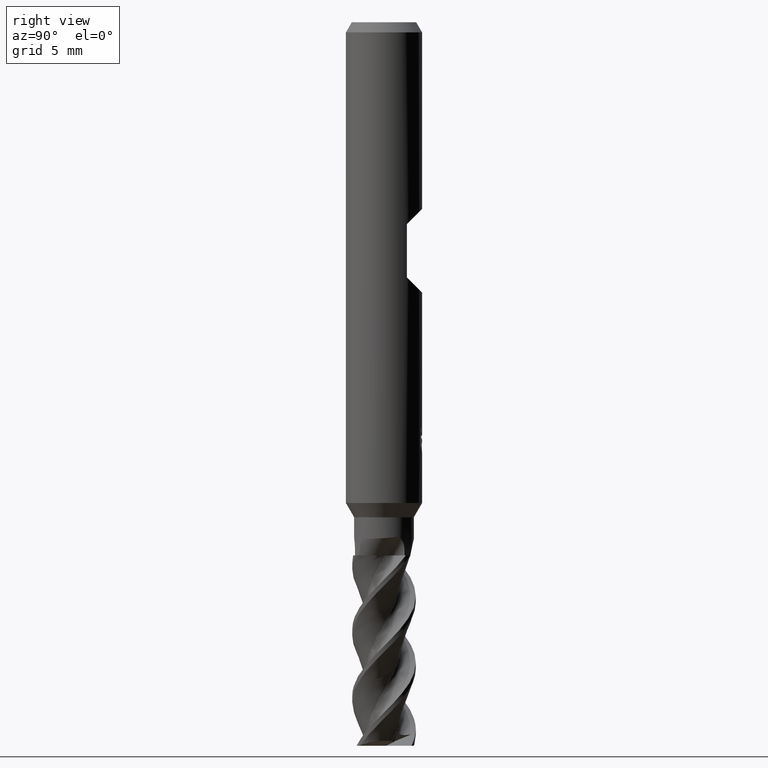
[diagram: clean part render]
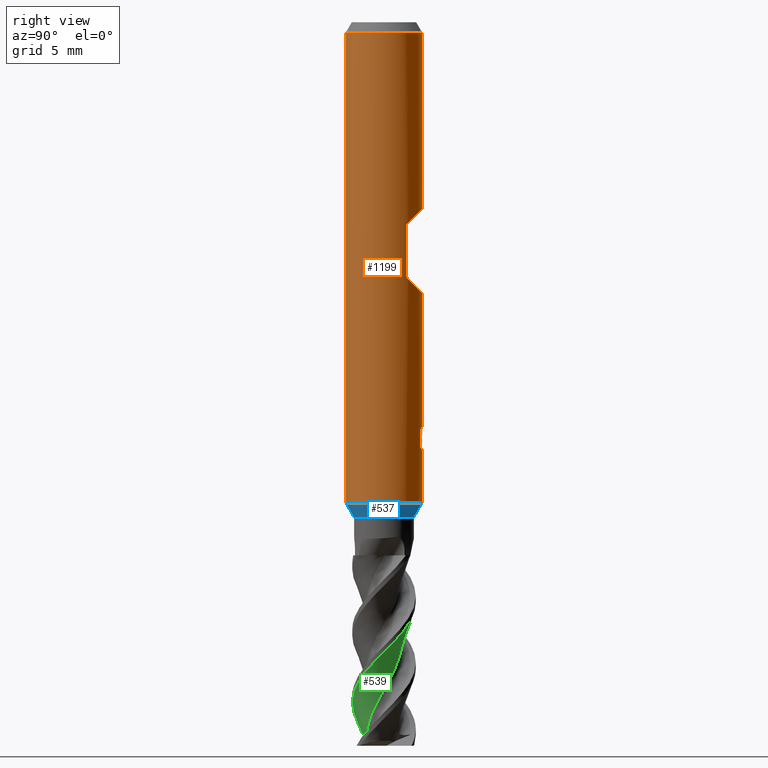
[diagram: same view with three faces highlighted in distinct colors, each labeled with its STEP entity id]
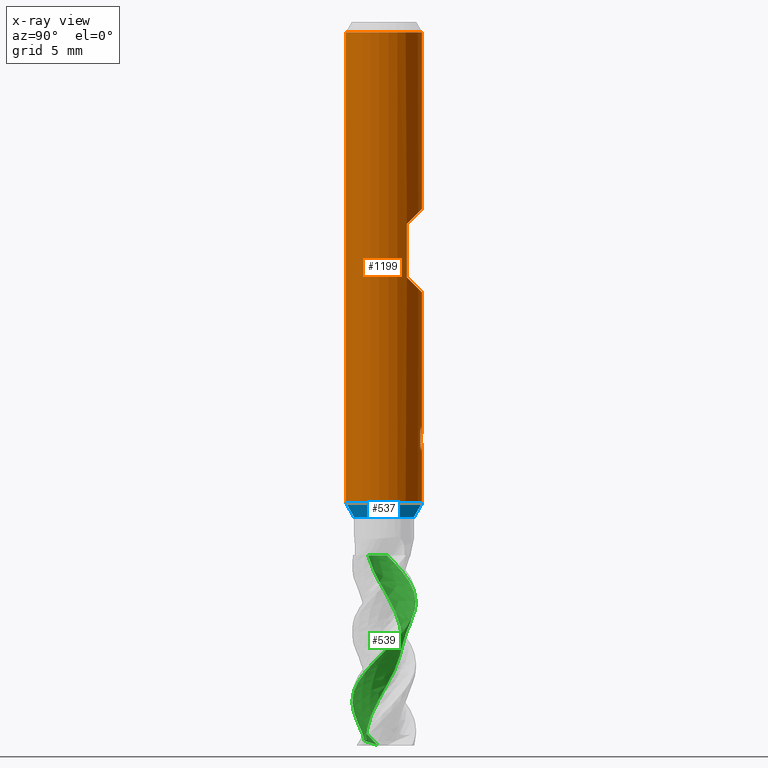
[diagram: x-ray of the same camera — body ghosted, the three highlighted faces saturated]
A machine part, right view with three faces highlighted in distinct colors.
The next image is the same camera in x-ray (body ghosted, the three faces saturated) — at least one of them is partly hidden behind the body in this view.
Their STEP definitions:

[orange] entity #1199 — the highlighted cylindrical surface (partial cylindrical patch) has radius 3 mm, axis along (-0, -0, 1).
#607=EDGE_CURVE('',#1151,#961,#1542,.T.);
#655=VERTEX_POINT('',#1592);
#693=VERTEX_POINT('',#1633);
#695=EDGE_CURVE('',#1057,#921,#1635,.T.);
#707=EDGE_CURVE('',#1237,#1291,#1651,.T.);
#709=VERTEX_POINT('',#1653);
#713=VERTEX_POINT('',#1657);
#735=VERTEX_POINT('',#1684);
#761=VERTEX_POINT('',#1713);
#787=VERTEX_POINT('',#1740);
#793=EDGE_CURVE('',#693,#1365,#1747,.T.);
#807=VERTEX_POINT('',#1762);
#831=VERTEX_POINT('',#1787);
#833=EDGE_CURVE('',#921,#1283,#1789,.T.);
#845=EDGE_CURVE('',#1291,#713,#1801,.T.);
#857=EDGE_CURVE('',#807,#1295,#1814,.T.);
#905=EDGE_CURVE('',#1151,#693,#1863,.T.);
#921=VERTEX_POINT('',#1880);
#961=VERTEX_POINT('',#1925);
#981=EDGE_CURVE('',#735,#1237,#1945,.T.);
#989=EDGE_CURVE('',#1339,#761,#1954,.T.);
#1011=EDGE_CURVE('',#713,#655,#1977,.T.);
#1015=EDGE_CURVE('',#655,#1339,#1982,.T.);
#1057=VERTEX_POINT('',#2027);
#1059=EDGE_CURVE('',#831,#709,#2029,.T.);
#1127=EDGE_CURVE('',#961,#807,#2099,.T.);
#1149=EDGE_CURVE('',#761,#1057,#2126,.T.);
#1151=VERTEX_POINT('',#2128);
#1199=ADVANCED_FACE('',(#2182,#2183),#2184,.T.);
#1237=VERTEX_POINT('',#2224);
#1277=EDGE_CURVE('',#1365,#709,#2267,.T.);
#1281=EDGE_CURVE('',#787,#735,#2271,.T.);
#1283=VERTEX_POINT('',#2273);
#1291=VERTEX_POINT('',#2281);
#1295=VERTEX_POINT('',#2285);
#1301=EDGE_CURVE('',#1283,#787,#2293,.T.);
#1311=EDGE_CURVE('',#831,#1295,#2303,.T.);
#1339=VERTEX_POINT('',#2336);
#1365=VERTEX_POINT('',#2363);
#1542=LINE('',#4746,#4747);
#1592=CARTESIAN_POINT('',(0.0173204359060198,2.99995,-33.8943099672144));
#1633=CARTESIAN_POINT('',(2.4,1.8,-20.1));
#1635=B_SPLINE_CURVE_WITH_KNOTS('',3,(#4926,#4927,#4928,#4929,#4930,#4931),.UNSPECIFIED.,.F.,.F.,(4,2,4),(5.37052262242642,5.78309682294637,6.19625240627158),.UNSPECIFIED.);
#1651=B_SPLINE_CURVE_WITH_KNOTS('',3,(#5321,#5322,#5323,#5324,#5325,#5326,#5327,#5328,#5329,#5330,#5331,#5332,#5333,#5334),.UNSPECIFIED.,.F.,.F.,(4,2,2,2,2,2,4),(2.091097645352,2.38959558480883,2.68809352426566,2.9865914637225,3.28432857408576,3.58206568444903,3.88185771191667),.UNSPECIFIED.);
#1653=CARTESIAN_POINT('',(-3.67381906146713E-016,3.0,-14.7));
#1657=CARTESIAN_POINT('',(0.017320435906062,2.99995,-33.0074691290822));
#1684=CARTESIAN_POINT('',(0.0173204359060941,2.99995,-32.559797860575));
#1713=CARTESIAN_POINT('',(0.582364149245687,2.94293255064967,-32.7540141090597));
#1740=CARTESIAN_POINT('',(0.532945602569764,2.95228199613478,-31.8741001845789));
#1747=LINE('',#6022,#6023);
#1762=CARTESIAN_POINT('',(3.67381906146713E-016,-3.0,-37.874));
#1787=CARTESIAN_POINT('',(0.0,3.0,-0.799999999999997));
#1789=LINE('',#6098,#6099);
#1801=ELLIPSE('',#6114,3.34478529612858,3.0);
#1814=LINE('',#6131,#6132);
#1863=ELLIPSE('',#6547,4.24264068711928,3.0);
#1880=CARTESIAN_POINT('',(0.891458520360564,2.86448978117859,-33.4008516898096));
#1925=CARTESIAN_POINT('',(0.0,3.0,-37.874));
#1945=LINE('',#7294,#7295);
#1954=ELLIPSE('',#7311,9.14398372010932,3.0);
#1977=LINE('',#7361,#7362);
#1982=B_SPLINE_CURVE_WITH_KNOTS('',3,(#7368,#7369,#7370,#7371,#7372,#7373,#7374,#7375,#7376,#7377),.UNSPECIFIED.,.F.,.F.,(4,2,2,2,4),(3.71798730591324,4.13127027719932,4.54460961578537,4.95794895437142,5.37052319276391),.UNSPECIFIED.);
#2027=CARTESIAN_POINT('',(0.582364149245686,2.94293255064967,-33.7132261365542));
#2029=LINE('',#8032,#8033);
#2099=CIRCLE('',#8307,3.0);
#2126=LINE('',#8353,#8354);
#2128=CARTESIAN_POINT('',(-3.67381906146713E-016,3.0,-21.3));
#2182=FACE_OUTER_BOUND('',#8918,.T.);
#2183=FACE_BOUND('',#8919,.T.);
#2184=CYLINDRICAL_SURFACE('',#8920,3.0);
#2224=CARTESIAN_POINT('',(0.0173204359060491,2.99995,-32.8761258377871));
#2267=ELLIPSE('',#9199,4.24264068711928,3.0);
#2271=B_SPLINE_CURVE_WITH_KNOTS('',3,(#9206,#9207,#9208,#9209,#9210,#9211,#9212,#9213,#9214,#9215,#9216,#9217,#9218,#9219,#9220,#9221,#9222,#9223,#9224,#9225,#9226,#9227,#9228,#9229,#9230,#9231,#9232),.UNSPECIFIED.,.F.,.F.,(4,2,3,2,2,2,2,2,2,2,2,2,4),(-0.361797878080094,-0.180898939040047,0.0,0.180898939040045,0.36179787808009,0.54316499674529,0.72453211541049,0.905110773244762,1.08568943107903,1.26650066090355,1.44731189072806,1.62812312055258,1.8089343503771),.UNSPECIFIED.);
#2273=CARTESIAN_POINT('',(0.891458520360563,2.86448978117859,-32.2174599021333));
#2281=CARTESIAN_POINT('',(0.382078323112378,2.97556988743461,-32.8276374206519));
#2285=CARTESIAN_POINT('',(3.67381906146713E-016,-3.0,-0.799999999999997));
#2293=B_SPLINE_CURVE_WITH_KNOTS('',3,(#9308,#9309,#9310,#9311,#9312,#9313),.UNSPECIFIED.,.F.,.F.,(4,2,4),(0.413155597726241,0.826311195452482,1.23888540984236),.UNSPECIFIED.);
#2303=CIRCLE('',#9396,3.0);
#2336=CARTESIAN_POINT('',(0.193398861644812,2.99375965640438,-33.873955271205));
#2363=CARTESIAN_POINT('',(2.4,1.8,-15.9));
#4746=CARTESIAN_POINT('',(-3.67381906146713E-016,3.0,-19.337));
#4747=VECTOR('',#10592,1.0);
#4926=CARTESIAN_POINT('',(0.398117010340552,2.9734664696407,-33.8116335040356));
#4927=CARTESIAN_POINT('',(0.531685226880304,2.95558303976684,-33.7560698713996));
#4928=CARTESIAN_POINT('',(0.652975783373711,2.92974185605895,-33.6727230899086));
#4929=CARTESIAN_POINT('',(0.844490785097964,2.88038670497133,-33.4812944450911));
#4930=CARTESIAN_POINT('',(0.927866849687463,2.85351135080826,-33.3599939218539));
#4931=CARTESIAN_POINT('',(0.983470326877135,2.83421701994611,-33.2264192995311));
#5321=CARTESIAN_POINT('',(-0.629727328037685,2.93316271153213,-31.7890913557644));
#5322=CARTESIAN_POINT('',(-0.670089755997728,2.92449721450026,-31.8862639601135));
#5323=CARTESIAN_POINT('',(-0.690061178540055,2.91955742705498,-31.9921316354559));
#5324=CARTESIAN_POINT('',(-0.690061178540055,2.91955742705498,-32.1911302617605));
#5325=CARTESIAN_POINT('',(-0.67008975599773,2.92449721450026,-32.2969979371029));
#5326=CARTESIAN_POINT('',(-0.589364900077662,2.94182820856402,-32.4913431458012));
#5327=CARTESIAN_POINT('',(-0.5286299692125,2.95390696563364,-32.5798560999866));
#5328=CARTESIAN_POINT('',(-0.388825924618278,2.97553438372319,-32.7194507471901));
#5329=CARTESIAN_POINT('',(-0.300374998568302,2.98650953771095,-32.7800152917628));
#5330=CARTESIAN_POINT('',(-0.106252469502455,2.99969577970094,-32.8604637231012));
#5331=CARTESIAN_POINT('',(-0.000555188223129333,3.0016411180253,-32.8803289843056));
#5332=CARTESIAN_POINT('',(0.198513504569518,2.99509240733468,-32.8803289843056));
#5333=CARTESIAN_POINT('',(0.304528894401641,2.98611319488251,-32.860217470731));
#5334=CARTESIAN_POINT('',(0.401676121348873,2.97298777218106,-32.8197873850085));
#6022=CARTESIAN_POINT('',(2.4,1.8,-18.0));
#6023=VECTOR('',#10794,1.0);
#6098=CARTESIAN_POINT('',(0.891458520360564,2.86448978117859,-32.8091557959714));
#6099=VECTOR('',#10824,1.0);
#6114=AXIS2_PLACEMENT_3D('',#10826,#10827,#10828);
#6131=CARTESIAN_POINT('',(3.67381906146713E-016,-3.0,-19.337));
#6132=VECTOR('',#10841,1.0);
#6547=AXIS2_PLACEMENT_3D('',#10866,#10867,#10868);
#7294=CARTESIAN_POINT('',(0.017320435906062,2.99995,-32.8845073647412));
#7295=VECTOR('',#10948,1.0);
#7311=AXIS2_PLACEMENT_3D('',#10957,#10958,#10959);
#7361=CARTESIAN_POINT('',(0.017320435906062,2.99995,-32.8845073647412));
#7362=VECTOR('',#10977,1.0);
#7368=CARTESIAN_POINT('',(-1.0213107725762,2.82080206782039,-33.2263603909889));
#7369=CARTESIAN_POINT('',(-0.965748326062899,2.84091920915678,-33.359858656383));
#7370=CARTESIAN_POINT('',(-0.882474008253196,2.86898278727422,-33.4810393018291));
#7371=CARTESIAN_POINT('',(-0.691181971660376,2.92097462682348,-33.6724209134462));
#7372=CARTESIAN_POINT('',(-0.569939118101214,2.94845792845378,-33.7558242986056));
#7373=CARTESIAN_POINT('',(-0.302738780934601,2.98773894197887,-33.8671051738375));
#7374=CARTESIAN_POINT('',(-0.156684840798735,2.99907204453492,-33.8949145449035));
#7375=CARTESIAN_POINT('',(0.118614216879023,3.00080717863586,-33.8949145449035));
#7376=CARTESIAN_POINT('',(0.264548965222022,2.99134988491468,-33.8671974310104));
#7377=CARTESIAN_POINT('',(0.398117192990065,2.97346644518577,-33.8116337934181));
#8032=CARTESIAN_POINT('',(-3.67381906146713E-016,3.0,-19.337));
#8033=VECTOR('',#11030,1.0);
#8307=AXIS2_PLACEMENT_3D('',#11059,#11060,#11061);
#8353=CARTESIAN_POINT('',(0.582364149245687,2.94293255064967,-33.233620122807));
#8354=VECTOR('',#11123,1.0);
#8918=EDGE_LOOP('',(#11213,#11214,#11215,#11216,#11217,#11218,#11219,#11220));
#8919=EDGE_LOOP('',(#11221,#11222,#11223,#11224,#11225,#11226,#11227,#11228,#11229,#11230,#11231));
#8920=AXIS2_PLACEMENT_3D('',#11232,#11233,#11234);
#9199=AXIS2_PLACEMENT_3D('',#11295,#11296,#11297);
#9206=CARTESIAN_POINT('',(0.443451175650266,2.96704416125113,-31.7498764058061));
#9207=CARTESIAN_POINT('',(0.485825230520439,2.96071098134951,-31.7923072631594));
#9208=CARTESIAN_POINT('',(0.522628634598452,2.95423041401874,-31.8460565977037));
#9209=CARTESIAN_POINT('',(0.571515479073374,2.94516350896329,-31.9640093998545));
#9210=CARTESIAN_POINT('',(0.583590928420811,2.94268952291351,-32.0282247886017));
#9211=CARTESIAN_POINT('',(0.583590928420811,2.94268952291351,-32.0885244349484));
#9212=CARTESIAN_POINT('',(0.583590928420811,2.94268952291351,-32.1488240812951));
#9213=CARTESIAN_POINT('',(0.571515479073372,2.94516350896329,-32.2130394700424));
#9214=CARTESIAN_POINT('',(0.52262863459845,2.95423041401874,-32.3309922721932));
#9215=CARTESIAN_POINT('',(0.485825230520439,2.96071098134951,-32.3847416067375));
#9216=CARTESIAN_POINT('',(0.400967453640913,2.97339373188344,-32.4697131355921));
#9217=CARTESIAN_POINT('',(0.347160591378601,2.98043595390805,-32.5066186343397));
#9218=CARTESIAN_POINT('',(0.229067490754346,2.99183004798448,-32.5556491335629));
#9219=CARTESIAN_POINT('',(0.164768311964613,2.99608182394725,-32.5677661750437));
#9220=CARTESIAN_POINT('',(0.0441927259273236,3.00027835150232,-32.5677661750437));
#9221=CARTESIAN_POINT('',(-0.0199849147074392,3.00051422459916,-32.5557432311485));
#9222=CARTESIAN_POINT('',(-0.138011899975601,2.99740516520177,-32.5068705536194));
#9223=CARTESIAN_POINT('',(-0.191865153226538,2.99416206152009,-32.4700238345305));
#9224=CARTESIAN_POINT('',(-0.276951356845972,2.9874941541864,-32.3850104084073));
#9225=CARTESIAN_POINT('',(-0.313857517624861,2.98363884435361,-32.3311404765947));
#9226=CARTESIAN_POINT('',(-0.362829872721119,2.97808021777493,-32.21303592618));
#9227=CARTESIAN_POINT('',(-0.374892551769672,2.97648376018208,-32.1487948448899));
#9228=CARTESIAN_POINT('',(-0.374892551769672,2.97648376018208,-32.0282540250069));
#9229=CARTESIAN_POINT('',(-0.36282987272112,2.97808021777493,-31.9640129437168));
#9230=CARTESIAN_POINT('',(-0.31385751762486,2.98363884435361,-31.8459083933022));
#9231=CARTESIAN_POINT('',(-0.276951356845972,2.9874941541864,-31.7920384614896));
#9232=CARTESIAN_POINT('',(-0.234380876478644,2.99083025341478,-31.7495043932883));
#9308=CARTESIAN_POINT('',(0.983470332191285,2.8342170181021,-32.3918923016557));
#9309=CARTESIAN_POINT('',(0.927866853050187,2.8535113497582,-32.258317674708));
#9310=CARTESIAN_POINT('',(0.844490785540527,2.88038670496079,-32.1370171472775));
#9311=CARTESIAN_POINT('',(0.652975777169009,2.92974185755459,-31.9455884959489));
#9312=CARTESIAN_POINT('',(0.531685216531228,2.95558304183374,-31.8622417116512));
#9313=CARTESIAN_POINT('',(0.398116995441564,2.97346647163552,-31.8066780771524));
#9396=AXIS2_PLACEMENT_3D('',#11328,#11329,#11330);
#10592=DIRECTION('',(0.0,0.0,-1.0));
#10794=DIRECTION('',(-0.0,-0.0,1.0));
#10824=DIRECTION('',(-0.0,-0.0,1.0));
#10826=CARTESIAN_POINT('',(0.0,0.0,-33.0160083922181));
#10827=DIRECTION('',(-0.442195774284071,0.0,0.896918556617774));
#10828=DIRECTION('',(0.896918556617774,-0.0,0.442195774284071));
#10841=DIRECTION('',(-0.0,-0.0,1.0));
#10866=CARTESIAN_POINT('',(0.0,0.0,-18.3));
#10867=DIRECTION('',(0.0,-0.707106781186547,-0.707106781186548));
#10868=DIRECTION('',(0.0,0.707106781186548,-0.707106781186547));
#10948=DIRECTION('',(0.0,0.0,-1.0));
#10957=CARTESIAN_POINT('',(0.0,0.0,-34.4308053366801));
#10958=DIRECTION('',(0.944648353914092,0.0,-0.328084573619969));
#10959=DIRECTION('',(0.328084573619969,-0.0,0.944648353914092));
#10977=DIRECTION('',(0.0,0.0,-1.0));
#11030=DIRECTION('',(0.0,0.0,-1.0));
#11059=CARTESIAN_POINT('',(0.0,0.0,-37.874));
#11060=DIRECTION('',(0.0,0.0,-1.0));
#11061=DIRECTION('',(0.0,1.0,0.0));
#11123=DIRECTION('',(0.0,0.0,-1.0));
#11213=ORIENTED_EDGE('',*,*,#1059,.F.);
#11214=ORIENTED_EDGE('',*,*,#1311,.T.);
#11215=ORIENTED_EDGE('',*,*,#857,.F.);
#11216=ORIENTED_EDGE('',*,*,#1127,.F.);
#11217=ORIENTED_EDGE('',*,*,#607,.F.);
#11218=ORIENTED_EDGE('',*,*,#905,.T.);
#11219=ORIENTED_EDGE('',*,*,#793,.T.);
#11220=ORIENTED_EDGE('',*,*,#1277,.T.);
#11221=ORIENTED_EDGE('',*,*,#845,.T.);
#11222=ORIENTED_EDGE('',*,*,#1011,.T.);
#11223=ORIENTED_EDGE('',*,*,#1015,.T.);
#11224=ORIENTED_EDGE('',*,*,#989,.T.);
#11225=ORIENTED_EDGE('',*,*,#1149,.T.);
#11226=ORIENTED_EDGE('',*,*,#695,.T.);
#11227=ORIENTED_EDGE('',*,*,#833,.T.);
#11228=ORIENTED_EDGE('',*,*,#1301,.T.);
#11229=ORIENTED_EDGE('',*,*,#1281,.T.);
#11230=ORIENTED_EDGE('',*,*,#981,.T.);
#11231=ORIENTED_EDGE('',*,*,#707,.T.);
#11232=CARTESIAN_POINT('',(0.0,0.0,-19.337));
#11233=DIRECTION('',(-0.0,-0.0,1.0));
#11234=DIRECTION('',(0.0,1.0,0.0));
#11295=CARTESIAN_POINT('',(0.0,0.0,-17.7));
#11296=DIRECTION('',(0.0,-0.707106781186547,0.707106781186548));
#11297=DIRECTION('',(0.0,0.707106781186548,0.707106781186547));
#11328=CARTESIAN_POINT('',(0.0,0.0,-0.799999999999997));
#11329=DIRECTION('',(0.0,0.0,-1.0));
#11330=DIRECTION('',(0.0,1.0,0.0));

[blue] entity #537 — the highlighted conical surface has half-angle 29.996 deg.
#515=EDGE_CURVE('',#839,#803,#1434,.T.);
#537=ADVANCED_FACE('',(#1458),#1459,.T.);
#803=VERTEX_POINT('',#1758);
#839=VERTEX_POINT('',#1795);
#843=EDGE_CURVE('',#1091,#1115,#1799,.T.);
#1091=VERTEX_POINT('',#2062);
#1115=VERTEX_POINT('',#2087);
#1179=EDGE_CURVE('',#1091,#803,#2161,.T.);
#1321=EDGE_CURVE('',#1115,#839,#2314,.T.);
#1434=LINE('',#3487,#3488);
#1458=FACE_OUTER_BOUND('',#3539,.T.);
#1459=CONICAL_SURFACE('',#3540,2.67495,0.523534561556491);
#1758=CARTESIAN_POINT('',(3.67375783114944E-016,-2.99995,-37.874));
#1795=CARTESIAN_POINT('',(2.8777637011649E-016,-2.34995,-39.0));
#1799=LINE('',#6110,#6111);
#2062=CARTESIAN_POINT('',(0.0,2.99995,-37.874));
#2087=CARTESIAN_POINT('',(0.0,2.34995,-39.0));
#2161=CIRCLE('',#8864,2.99995);
#2314=CIRCLE('',#9629,2.34995);
#3487=CARTESIAN_POINT('',(3.27576076615717E-016,-2.67495,-38.437));
#3488=VECTOR('',#10422,1.0);
#3539=EDGE_LOOP('',(#10446,#10447,#10448,#10449));
#3540=AXIS2_PLACEMENT_3D('',#10450,#10451,#10452);
#6110=CARTESIAN_POINT('',(-3.27576076615717E-016,2.67495,-38.437));
#6111=VECTOR('',#10825,1.0);
#8864=AXIS2_PLACEMENT_3D('',#11179,#11180,#11181);
#9629=AXIS2_PLACEMENT_3D('',#11343,#11344,#11345);
#10422=DIRECTION('',(6.12235074075321E-017,-0.499944387977691,0.866057509019818));
#10446=ORIENTED_EDGE('',*,*,#843,.F.);
#10447=ORIENTED_EDGE('',*,*,#1179,.T.);
#10448=ORIENTED_EDGE('',*,*,#515,.F.);
#10449=ORIENTED_EDGE('',*,*,#1321,.F.);
#10450=CARTESIAN_POINT('',(0.0,0.0,-38.437));
#10451=DIRECTION('',(-0.0,-0.0,1.0));
#10452=DIRECTION('',(0.0,1.0,0.0));
#10825=DIRECTION('',(6.12235074075321E-017,-0.499944387977691,-0.866057509019818));
#11179=CARTESIAN_POINT('',(0.0,0.0,-37.874));
#11180=DIRECTION('',(0.0,0.0,-1.0));
#11181=DIRECTION('',(0.0,1.0,0.0));
#11343=CARTESIAN_POINT('',(0.0,0.0,-39.0));
#11344=DIRECTION('',(0.0,0.0,-1.0));
#11345=DIRECTION('',(0.0,1.0,0.0));

[green] entity #539 — the highlighted face is a freeform B-spline surface patch.
#501=VERTEX_POINT('',#1418);
#527=VERTEX_POINT('',#1447);
#539=ADVANCED_FACE('',(#1461),#1462,.T.);
#569=VERTEX_POINT('',#1499);
#577=EDGE_CURVE('',#1263,#527,#1507,.T.);
#609=EDGE_CURVE('',#1333,#1107,#1544,.T.);
#715=EDGE_CURVE('',#1369,#569,#1659,.T.);
#721=EDGE_CURVE('',#527,#1333,#1666,.T.);
#887=EDGE_CURVE('',#1107,#1369,#1845,.T.);
#1067=EDGE_CURVE('',#501,#1263,#2037,.T.);
#1107=VERTEX_POINT('',#2079);
#1263=VERTEX_POINT('',#2251);
#1333=VERTEX_POINT('',#2329);
#1361=EDGE_CURVE('',#569,#501,#2359,.T.);
#1369=VERTEX_POINT('',#2367);
#1418=CARTESIAN_POINT('',(-1.62781874390502E-014,-2.49997701042096,-53.5515631434853));
#1447=CARTESIAN_POINT('',(-2.488577625498,0.237658182839814,-42.0));
#1461=FACE_OUTER_BOUND('',#3542,.T.);
#1462=B_SPLINE_SURFACE_WITH_KNOTS('',3,3,((#3543,#3544,#3545,#3546,#3547,#3548,#3549,#3550,#3551,#3552,#3553,#3554,#3555,#3556,#3557,#3558,#3559,#3560,#3561,#3562,#3563,#3564,#3565,#3566,#3567,#3568,#3569,#3570,#3571,#3572,#3573,#3574,#3575,#3576,#3577,#3578,#3579,#3580,#3581,#3582,#3583,#3584,#3585,#3586,#3587,#3588,#3589,#3590,#3591,#3592,#3593,#3594,#3595),(#3596,#3597,#3598,#3599,#3600,#3601,#3602,#3603,#3604,#3605,#3606,#3607,#3608,#3609,#3610,#3611,#3612,#3613,#3614,#3615,#3616,#3617,#3618,#3619,#3620,#3621,#3622,#3623,#3624,#3625,#3626,#3627,#3628,#3629,#3630,#3631,#3632,#3633,#3634,#3635,#3636,#3637,#3638,#3639,#3640,#3641,#3642,#3643,#3644,#3645,#3646,#3647,#3648),(#3649,#3650,#3651,#3652,#3653,#3654,#3655,#3656,#3657,#3658,#3659,#3660,#3661,#3662,#3663,#3664,#3665,#3666,#3667,#3668,#3669,#3670,#3671,#3672,#3673,#3674,#3675,#3676,#3677,#3678,#3679,#3680,#3681,#3682,#3683,#3684,#3685,#3686,#3687,#3688,#3689,#3690,#3691,#3692,#3693,#3694,#3695,#3696,#3697,#3698,#3699,#3700,#3701),(#3702,#3703,#3704,#3705,#3706,#3707,#3708,#3709,#3710,#3711,#3712,#3713,#3714,#3715,#3716,#3717,#3718,#3719,#3720,#3721,#3722,#3723,#3724,#3725,#3726,#3727,#3728,#3729,#3730,#3731,#3732,#3733,#3734,#3735,#3736,#3737,#3738,#3739,#3740,#3741,#3742,#3743,#3744,#3745,#3746,#3747,#3748,#3749,#3750,#3751,#3752,#3753,#3754),(#3755,#3756,#3757,#3758,#3759,#3760,#3761,#3762,#3763,#3764,#3765,#3766,#3767,#3768,#3769,#3770,#3771,#3772,#3773,#3774,#3775,#3776,#3777,#3778,#3779,#3780,#3781,#3782,#3783,#3784,#3785,#3786,#3787,#3788,#3789,#3790,#3791,#3792,#3793,#3794,#3795,#3796,#3797,#3798,#3799,#3800,#3801,#3802,#3803,#3804,#3805,#3806,#3807),(#3808,#3809,#3810,#3811,#3812,#3813,#3814,#3815,#3816,#3817,#3818,#3819,#3820,#3821,#3822,#3823,#3824,#3825,#3826,#3827,#3828,#3829,#3830,#3831,#3832,#3833,#3834,#3835,#3836,#3837,#3838,#3839,#3840,#3841,#3842,#3843,#3844,#3845,#3846,#3847,#3848,#3849,#3850,#3851,#3852,#3853,#3854,#3855,#3856,#3857,#3858,#3859,#3860),(#3861,#3862,#3863,#3864,#3865,#3866,#3867,#3868,#3869,#3870,#3871,#3872,#3873,#3874,#3875,#3876,#3877,#3878,#3879,#3880,#3881,#3882,#3883,#3884,#3885,#3886,#3887,#3888,#3889,#3890,#3891,#3892,#3893,#3894,#3895,#3896,#3897,#3898,#3899,#3900,#3901,#3902,#3903,#3904,#3905,#3906,#3907,#3908,#3909,#3910,#3911,#3912,#3913)),.UNSPECIFIED.,.F.,.F.,.F.,(4,1,1,1,4),(4,1,2,1,2,1,2,1,2,1,2,1,2,1,2,1,2,1,2,1,2,1,2,1,2,1,2,1,2,1,2,1,2,1,4),(-1.37901021713108,-1.03425766284831,-0.689505108565541,-0.34475255428277,0.0),(0.0,0.39256726603244,0.78513453206488,1.17770179809732,1.57026906412976,2.35540359619464,3.14053812825952,3.9256726603244,4.71080719238928,5.49594172445416,6.28107625651904,7.06621078858392,7.8513453206488,8.63647985271368,9.42161438477856,10.2067489168434,10.9918834489083,11.7770179809732,12.5621525130381,13.347287045103,14.1324215771678,14.9175561092327,15.7026906412976,16.4878251733625,17.2729597054274,18.0580942374922,18.8432287695571,19.628363301622,20.4134978336869,21.1986323657518,21.9837668978167,22.7689014298815,23.5540359619464,24.3391704940113,25.1243050260762),.UNSPECIFIED.);
#1499=CARTESIAN_POINT('',(-2.44041275533891,-0.542571095134205,-56.9342908740644));
#1507=B_SPLINE_CURVE_WITH_KNOTS('',3,(#4540,#4541,#4542,#4543,#4544,#4545,#4546,#4547,#4548,#4549,#4550,#4551,#4552,#4553,#4554,#4555,#4556,#4557,#4558,#4559,#4560,#4561,#4562,#4563,#4564,#4565,#4566,#4567,#4568,#4569,#4570,#4571,#4572,#4573,#4574,#4575,#4576,#4577,#4578,#4579,#4580,#4581,#4582,#4583,#4584,#4585,#4586,#4587,#4588,#4589,#4590,#4591,#4592,#4593),.UNSPECIFIED.,.F.,.F.,(4,2,2,2,2,2,2,2,2,2,2,2,2,2,2,2,2,2,2,2,2,2,2,2,2,2,4),(0.0,0.949307218351978,1.44517180700814,2.25468386713436,3.20044648851321,3.6913598016812,4.41834791469613,4.95626287857389,6.03188973786908,6.64596925747151,7.15379687236268,7.65713368156595,7.90433205620945,8.41563868022746,8.78663468657467,9.10655504331092,9.21182282104264,9.42940427331847,9.63227522651596,9.79488440458035,9.88308167024097,10.0657391540385,10.2003654098311,10.2961537748771,10.346791859041,10.4470408813413,10.5414660368113),.UNSPECIFIED.);
#1544=B_SPLINE_CURVE_WITH_KNOTS('',3,(#4750,#4751,#4752,#4753,#4754,#4755,#4756,#4757,#4758,#4759),.UNSPECIFIED.,.F.,.F.,(4,2,2,2,4),(0.0,0.807465545175308,1.61486374076615,2.22068933445551,2.82649222843999),.UNSPECIFIED.);
#1659=B_SPLINE_CURVE_WITH_KNOTS('',3,(#5399,#5400,#5401,#5402,#5403,#5404,#5405,#5406,#5407,#5408,#5409,#5410),.UNSPECIFIED.,.F.,.F.,(4,2,2,2,2,4),(0.0,0.7425105058229,1.4356654879712,2.16874191536152,2.59065537379827,3.04679243279773),.UNSPECIFIED.);
#1666=B_SPLINE_CURVE_WITH_KNOTS('',3,(#5434,#5435,#5436,#5437,#5438,#5439,#5440,#5441,#5442,#5443),.UNSPECIFIED.,.F.,.F.,(4,2,2,2,4),(0.0,0.807465545175308,1.61486374076615,2.22068933445551,2.82649222843999),.UNSPECIFIED.);
#1845=B_SPLINE_CURVE_WITH_KNOTS('',3,(#6255,#6256,#6257,#6258,#6259,#6260,#6261,#6262,#6263,#6264,#6265,#6266,#6267,#6268,#6269,#6270,#6271,#6272,#6273,#6274,#6275,#6276,#6277,#6278,#6279,#6280,#6281,#6282,#6283,#6284,#6285,#6286,#6287,#6288,#6289,#6290,#6291,#6292,#6293,#6294,#6295,#6296,#6297,#6298,#6299,#6300,#6301,#6302,#6303,#6304,#6305,#6306,#6307,#6308,#6309,#6310,#6311,#6312,#6313,#6314,#6315,#6316,#6317,#6318,#6319,#6320,#6321,#6322,#6323,#6324,#6325,#6326,#6327,#6328,#6329,#6330,#6331,#6332,#6333,#6334,#6335,#6336,#6337,#6338,#6339,#6340,#6341,#6342,#6343,#6344,#6345,#6346,#6347,#6348,#6349,#6350,#6351,#6352),.UNSPECIFIED.,.F.,.F.,(4,2,2,2,2,2,2,2,2,2,2,2,2,2,2,2,2,2,2,2,2,2,2,2,2,2,2,2,2,2,2,2,2,2,2,2,2,2,2,2,2,2,2,2,2,2,2,2,4),(0.0,0.304143809809159,0.762213759750684,1.18008300927293,1.32847809153135,1.76171892227769,2.02448424951379,2.51121897756536,2.60912076108376,2.79399270393138,3.04180577645597,3.37058275597093,3.66057405810469,3.74937802060573,3.91947575855534,4.15257293683676,4.47670871862171,4.6925575863671,4.77512781136447,4.93241101532635,5.14464630943382,5.43153670907664,5.6472330568964,5.72526730392091,5.87187963705896,6.06775892271481,6.32468383704552,6.54529223534291,6.61981852443901,6.74867655513051,6.92986385716103,7.15346416832661,7.41175672694493,7.48289423858015,7.6899676087561,7.8157663545054,8.04709216724569,8.0937333710359,8.18206123968607,8.29862796874361,8.45081194363054,8.58524175358251,8.62994127308998,8.70685503127631,8.81986303837905,8.96323350385719,9.07679864155315,9.14295514877257,9.20792939893099),.UNSPECIFIED.);
#2037=B_SPLINE_CURVE_WITH_KNOTS('',3,(#8095,#8096,#8097,#8098,#8099,#8100,#8101,#8102,#8103,#8104,#8105,#8106,#8107,#8108,#8109,#8110,#8111,#8112,#8113,#8114,#8115,#8116,#8117,#8118,#8119,#8120,#8121,#8122,#8123,#8124,#8125,#8126,#8127,#8128,#8129,#8130,#8131,#8132,#8133,#8134,#8135,#8136,#8137,#8138,#8139,#8140,#8141,#8142,#8143,#8144,#8145,#8146,#8147,#8148),.UNSPECIFIED.,.F.,.F.,(4,2,2,2,2,2,2,2,2,2,2,2,2,2,2,2,2,2,2,2,2,2,2,2,2,2,4),(0.0,0.949307218351978,1.44517180700814,2.25468386713436,3.20044648851321,3.6913598016812,4.41834791469613,4.95626287857389,6.03188973786908,6.64596925747151,7.15379687236268,7.65713368156595,7.90433205620945,8.41563868022746,8.78663468657467,9.10655504331092,9.21182282104264,9.42940427331847,9.63227522651596,9.79488440458035,9.88308167024097,10.0657391540385,10.2003654098311,10.2961537748771,10.346791859041,10.4470408813413,10.5414660368113),.UNSPECIFIED.);
#2079=CARTESIAN_POINT('',(-0.650248677800562,-1.25477587777914,-42.0));
#2251=CARTESIAN_POINT('',(-1.99530857295193E-015,2.49992464632121,-45.696948182102));
#2329=CARTESIAN_POINT('',(-1.09435701443387,-1.17330768501924,-42.0));
#2359=B_SPLINE_CURVE_WITH_KNOTS('',3,(#10261,#10262,#10263,#10264,#10265,#10266,#10267,#10268,#10269,#10270,#10271,#10272,#10273,#10274,#10275,#10276,#10277,#10278,#10279,#10280,#10281,#10282,#10283,#10284,#10285,#10286,#10287,#10288,#10289,#10290,#10291,#10292,#10293,#10294,#10295,#10296,#10297,#10298,#10299,#10300,#10301,#10302,#10303,#10304,#10305,#10306,#10307,#10308,#10309,#10310,#10311,#10312,#10313,#10314),.UNSPECIFIED.,.F.,.F.,(4,2,2,2,2,2,2,2,2,2,2,2,2,2,2,2,2,2,2,2,2,2,2,2,2,2,4),(0.0,0.949307218351978,1.44517180700814,2.25468386713436,3.20044648851321,3.6913598016812,4.41834791469613,4.95626287857389,6.03188973786908,6.64596925747151,7.15379687236268,7.65713368156595,7.90433205620945,8.41563868022746,8.78663468657467,9.10655504331092,9.21182282104264,9.42940427331847,9.63227522651596,9.79488440458035,9.88308167024097,10.0657391540385,10.2003654098311,10.2961537748771,10.346791859041,10.4470408813413,10.5414660368113),.UNSPECIFIED.);
#2367=CARTESIAN_POINT('',(-0.0716800092313147,-1.41092874494854,-56.6521443702652));
#3542=EDGE_LOOP('',(#10454,#10455,#10456,#10457,#10458,#10459,#10460));
#3543=CARTESIAN_POINT('',(0.720650074649256,2.49813199599561,-62.0));
#3544=CARTESIAN_POINT('',(0.68207384045159,2.50926992839316,-61.8697896620925));
#3545=CARTESIAN_POINT('',(0.548660550828038,2.54707452552632,-61.6094007717685));
#3546=CARTESIAN_POINT('',(0.286757627259201,2.58849493176704,-61.3490131944763));
#3547=CARTESIAN_POINT('',(-0.0387854627550352,2.60367249523649,-61.0885668613788));
#3548=CARTESIAN_POINT('',(-0.344433617564035,2.58805518609117,-60.828114407156));
#3549=CARTESIAN_POINT('',(-0.613875694322192,2.52918051712085,-60.5676873778234));
#3550=CARTESIAN_POINT('',(-0.999019326099368,2.41468008645591,-60.1770816672908));
#3551=CARTESIAN_POINT('',(-1.47160230989291,2.19000343017903,-59.6562630871616));
#3552=CARTESIAN_POINT('',(-1.87122222110174,1.82602279319206,-59.1354516553726));
#3553=CARTESIAN_POINT('',(-2.22018313474478,1.38080583376065,-58.6146033541491));
#3554=CARTESIAN_POINT('',(-2.47781389080771,0.907722991800012,-58.0937422973063));
#3555=CARTESIAN_POINT('',(-2.58623735448792,0.382180153629291,-57.5729241050613));
#3556=CARTESIAN_POINT('',(-2.6082029002354,-0.179147028083263,-57.0520950424922));
#3557=CARTESIAN_POINT('',(-2.54083284227089,-0.713289440520932,-56.5312483721567));
#3558=CARTESIAN_POINT('',(-2.32047206191192,-1.2041344884339,-56.0104302799751));
#3559=CARTESIAN_POINT('',(-2.00997274522603,-1.67174925959763,-55.4895956723804));
#3560=CARTESIAN_POINT('',(-1.64341469458867,-2.06475333698703,-54.9687457762286));
#3561=CARTESIAN_POINT('',(-1.17792502687026,-2.33391742104032,-54.4479281436822));
#3562=CARTESIAN_POINT('',(-0.652104599773334,-2.5317191546183,-53.9270945795213));
#3563=CARTESIAN_POINT('',(-0.124458292161386,-2.63604026517164,-53.4062450535708));
#3564=CARTESIAN_POINT('',(0.410558185512534,-2.58187256786852,-52.8854272114797));
#3565=CARTESIAN_POINT('',(0.952535678361508,-2.43464123763912,-52.3645935969755));
#3566=CARTESIAN_POINT('',(1.44136563593478,-2.2105718951533,-51.8437441443441));
#3567=CARTESIAN_POINT('',(1.84356424500214,-1.85362033048328,-51.3229263628812));
#3568=CARTESIAN_POINT('',(2.19696986954546,-1.41708741861733,-50.8020927014414));
#3569=CARTESIAN_POINT('',(2.4622972519188,-0.949346298395558,-50.2812431948892));
#3570=CARTESIAN_POINT('',(2.57961084682459,-0.424552933628148,-49.7604254002472));
#3571=CARTESIAN_POINT('',(2.6107957531646,0.136228407645375,-49.2395917592627));
#3572=CARTESIAN_POINT('',(2.55229474288334,0.670790189213033,-48.7187422691039));
#3573=CARTESIAN_POINT('',(2.34037668730843,1.16502091898408,-48.1979244704215));
#3574=CARTESIAN_POINT('',(2.03755591523342,1.63804067075688,-47.6770908150067));
#3575=CARTESIAN_POINT('',(1.67734493324069,2.03732181217907,-47.1562413202583));
#3576=CARTESIAN_POINT('',(1.21631152904548,2.31413542715918,-46.6354235289252));
#3577=CARTESIAN_POINT('',(0.693964434807586,2.52056036272728,-46.1145898784383));
#3578=CARTESIAN_POINT('',(0.168222941698263,2.63360292396915,-45.5937403728593));
#3579=CARTESIAN_POINT('',(-0.367612165898593,2.58833776323339,-45.0729225711915));
#3580=CARTESIAN_POINT('',(-0.911980981243472,2.45012156597739,-44.5520889288775));
#3581=CARTESIAN_POINT('',(-1.40448566657376,2.23418930747517,-44.0312394656241));
#3582=CARTESIAN_POINT('',(-1.81258074114761,1.88393162458139,-43.510421652548));
#3583=CARTESIAN_POINT('',(-2.17320255651237,1.45327886017384,-42.9895879093707));
#3584=CARTESIAN_POINT('',(-2.44621714861311,0.990014690496291,-42.4687383197109));
#3585=CARTESIAN_POINT('',(-2.57219827493832,0.467348078362056,-41.9479207995757));
#3586=CARTESIAN_POINT('',(-2.61269581061987,-0.0927570130362488,-41.4270877348633));
#3587=CARTESIAN_POINT('',(-2.56309971383463,-0.628352467931654,-40.9062384515713));
#3588=CARTESIAN_POINT('',(-2.35934333375455,-1.12608964034657,-40.3854192785962));
#3589=CARTESIAN_POINT('',(-2.06453462117144,-1.60388340229392,-39.8645833794124));
#3590=CARTESIAN_POINT('',(-1.71135462136154,-2.00883338308588,-39.3437337123002));
#3591=CARTESIAN_POINT('',(-1.25415609937419,-2.29397982809519,-38.8229206613216));
#3592=CARTESIAN_POINT('',(-0.732898618986815,-2.5096786933909,-38.302093358884));
#3593=CARTESIAN_POINT('',(-0.208159933302978,-2.63040504536065,-37.7812434409979));
#3594=CARTESIAN_POINT('',(0.320670479662316,-2.59401128906896,-37.2604239552664));
#3595=CARTESIAN_POINT('',(0.588426094387056,-2.53170098071229,-37.0000103052656));
#3596=CARTESIAN_POINT('',(0.483471039413378,2.48514166915979,-62.0));
#3597=CARTESIAN_POINT('',(0.44513734586788,2.49185184408747,-61.8697689584104));
#3598=CARTESIAN_POINT('',(0.312629356581901,2.51594711889401,-61.6094715059808));
#3599=CARTESIAN_POINT('',(0.0552083405280562,2.53351516307106,-61.3491978589513));
#3600=CARTESIAN_POINT('',(-0.26181253230217,2.52062750775191,-61.0886585681466));
#3601=CARTESIAN_POINT('',(-0.556884402362142,2.47941797533355,-60.8280858811841));
#3602=CARTESIAN_POINT('',(-0.813038473131973,2.39915306355919,-60.567620152458));
#3603=CARTESIAN_POINT('',(-1.17652253619248,2.25494337736626,-60.1770770115265));
#3604=CARTESIAN_POINT('',(-1.6151744793696,1.99628387980813,-59.6563091151072));
#3605=CARTESIAN_POINT('',(-1.9711809696808,1.60901146801346,-59.1355761839313));
#3606=CARTESIAN_POINT('',(-2.27132618883344,1.14741869266982,-58.6146793226417));
#3607=CARTESIAN_POINT('',(-2.48027010601206,0.666571464852987,-58.0937249239695));
#3608=CARTESIAN_POINT('',(-2.54002383542587,0.147783287598759,-57.5729587385539));
#3609=CARTESIAN_POINT('',(-2.51313138485436,-0.398323866411017,-57.0521449286376));
#3610=CARTESIAN_POINT('',(-2.40173933693216,-0.910321861529126,-56.5312537622348));
#3611=CARTESIAN_POINT('',(-2.14579365656908,-1.36711919163849,-56.0104889335825));
#3612=CARTESIAN_POINT('',(-1.80461246660123,-1.7938279862611,-55.4896511525812));
#3613=CARTESIAN_POINT('',(-1.41535301057449,-2.14318504393327,-54.968745815233));
#3614=CARTESIAN_POINT('',(-0.940910654182135,-2.36394710872115,-54.4479827727216));
#3615=CARTESIAN_POINT('',(-0.414133225848106,-2.51058339231137,-53.9271494596552));
#3616=CARTESIAN_POINT('',(0.10637958369825,-2.56618931035827,-53.4062457392673));
#3617=CARTESIAN_POINT('',(0.620327811854575,-2.46753129355699,-52.8854818428923));
#3618=CARTESIAN_POINT('',(1.1331505468879,-2.27826031561023,-52.3646483352369));
#3619=CARTESIAN_POINT('',(1.58769969454755,-2.01886565427689,-51.8437449514035));
#3620=CARTESIAN_POINT('',(1.94678231706008,-1.63815959723133,-51.3229812957734));
#3621=CARTESIAN_POINT('',(2.25194464020795,-1.18459102686738,-50.8021475809093));
#3622=CARTESIAN_POINT('',(2.46880136546921,-0.708259905719449,-50.2812439509145));
#3623=CARTESIAN_POINT('',(2.53725138065517,-0.189429651399228,-49.760480242943));
#3624=CARTESIAN_POINT('',(2.51934579541366,0.356940182669497,-49.2396466233282));
#3625=CARTESIAN_POINT('',(2.41651092158813,0.870108318838232,-48.718743065479));
#3626=CARTESIAN_POINT('',(2.16845508103289,1.33091318320355,-48.1979793394599));
#3627=CARTESIAN_POINT('',(1.83425578198666,1.76352309236415,-47.6771456519906));
#3628=CARTESIAN_POINT('',(1.45060896979986,2.11951529571633,-47.1562420720003));
#3629=CARTESIAN_POINT('',(0.979826334978814,2.34807734002604,-46.6354783747733));
#3630=CARTESIAN_POINT('',(0.455676096022012,2.50337117672417,-46.1146447242864));
#3631=CARTESIAN_POINT('',(-0.0637424909789389,2.56759538177901,-45.5937411088754));
#3632=CARTESIAN_POINT('',(-0.579252130196996,2.47749645788133,-45.0729773600065));
#3633=CARTESIAN_POINT('',(-1.09516732471044,2.29676077429934,-44.5521437176924));
#3634=CARTESIAN_POINT('',(-1.55398103766895,2.04493746110999,-44.0312402229953));
#3635=CARTESIAN_POINT('',(-1.91935709570701,1.67021168958508,-43.5104764492191));
#3636=CARTESIAN_POINT('',(-2.23202078919714,1.22172472888875,-42.9896424709747));
#3637=CARTESIAN_POINT('',(-2.45671565805483,0.749070253610124,-42.4687386489636));
#3638=CARTESIAN_POINT('',(-2.53375016814376,0.231553999934368,-41.9479761104045));
#3639=CARTESIAN_POINT('',(-2.52493112663567,-0.31495954183546,-41.4271446697925));
#3640=CARTESIAN_POINT('',(-2.43064119708495,-0.829898588478399,-40.9062413698541));
#3641=CARTESIAN_POINT('',(-2.19019463206688,-1.29480702016501,-40.3854717678039));
#3642=CARTESIAN_POINT('',(-1.86335160468763,-1.73273111144711,-39.8646295218069));
#3643=CARTESIAN_POINT('',(-1.48602918800407,-2.09482055263467,-39.3437276747729));
#3644=CARTESIAN_POINT('',(-1.01824898622405,-2.3317994894949,-38.8229837164826));
#3645=CARTESIAN_POINT('',(-0.494360737642842,-2.49620036536686,-38.3021719925865));
#3646=CARTESIAN_POINT('',(0.0247537565753353,-2.56797021707761,-37.7812556736429));
#3647=CARTESIAN_POINT('',(0.534220253110473,-2.48701408245912,-37.2604624535462));
#3648=CARTESIAN_POINT('',(0.788442924659505,-2.4035763940093,-37.0000454698657));
#3649=CARTESIAN_POINT('',(0.0136926905951877,2.37661401809935,-62.0));
#3650=CARTESIAN_POINT('',(-0.0226149000106928,2.37455418392018,-61.8697303181951));
#3651=CARTESIAN_POINT('',(-0.148540979395165,2.37154928651932,-61.6096035205211));
#3652=CARTESIAN_POINT('',(-0.388697478387586,2.34297838677339,-61.3495425064037));
#3653=CARTESIAN_POINT('',(-0.678907903776349,2.27693338194184,-61.0888297248041));
#3654=CARTESIAN_POINT('',(-0.943922427903166,2.18822679834448,-60.8280326415782));
#3655=CARTESIAN_POINT('',(-1.16605889043054,2.06981155532766,-60.5674946871428));
#3656=CARTESIAN_POINT('',(-1.47588883056732,1.87372929787122,-60.1770683214335));
#3657=CARTESIAN_POINT('',(-1.83485933141056,1.55892219334442,-59.6563950180851));
#3658=CARTESIAN_POINT('',(-2.09554301179852,1.14025161803084,-59.1358086001308));
#3659=CARTESIAN_POINT('',(-2.29236926288649,0.662901560646342,-58.6148211031286));
#3660=CARTESIAN_POINT('',(-2.40124911082416,0.183472943441031,-58.0936924990512));
#3661=CARTESIAN_POINT('',(-2.3660263160633,-0.304868074165151,-57.5730233800947));
#3662=CARTESIAN_POINT('',(-2.24672724834374,-0.803533885567855,-57.0522380299104));
#3663=CARTESIAN_POINT('',(-2.05500943121566,-1.25592664248405,-56.5312638200555));
#3664=CARTESIAN_POINT('',(-1.73975303366475,-1.63225160104243,-56.010598408789));
#3665=CARTESIAN_POINT('',(-1.35145298211921,-1.96647968157792,-55.489754690449));
#3666=CARTESIAN_POINT('',(-0.931987668952805,-2.22065223703589,-54.9687458911134));
#3667=CARTESIAN_POINT('',(-0.456488464075282,-2.34150619025336,-54.448084730514));
#3668=CARTESIAN_POINT('',(0.0543945851010352,-2.38549110784463,-53.9272518837717));
#3669=CARTESIAN_POINT('',(0.543686826495165,-2.34616145315915,-53.4062470245417));
#3670=CARTESIAN_POINT('',(1.00001888448041,-2.16586656277925,-52.8855837940614));
#3671=CARTESIAN_POINT('',(1.43990738106167,-1.90267396898898,-52.3647505056152));
#3672=CARTESIAN_POINT('',(1.81360837164305,-1.58456881412873,-51.843746450173));
#3673=CARTESIAN_POINT('',(2.07820189166418,-1.17136615043604,-51.3230838245956));
#3674=CARTESIAN_POINT('',(2.28096022985959,-0.700521545412679,-50.8022499998452));
#3675=CARTESIAN_POINT('',(2.39789783721402,-0.223882763935323,-50.2812453609365));
#3676=CARTESIAN_POINT('',(2.37070819102655,0.266015766790891,-49.7605826053951));
#3677=CARTESIAN_POINT('',(2.25964964232489,0.766480182305002,-49.2397490115499));
#3678=CARTESIAN_POINT('',(2.07560403233744,1.22143589222101,-48.7187445535677));
#3679=CARTESIAN_POINT('',(1.76691539492263,1.602819496318,-48.1980817475382));
#3680=CARTESIAN_POINT('',(1.38403142962611,1.94369837929577,-47.6772479932145));
#3681=CARTESIAN_POINT('',(0.968585452698815,2.2049665268165,-47.1562434678834));
#3682=CARTESIAN_POINT('',(0.495100721853275,2.33364409349418,-46.6355807538097));
#3683=CARTESIAN_POINT('',(-0.0148591737542877,2.38606074811462,-46.1147470678135));
#3684=CARTESIAN_POINT('',(-0.504642269263951,2.35486095586539,-45.5937424777754));
#3685=CARTESIAN_POINT('',(-0.963901583263272,2.18217983742045,-45.073079642105));
#3686=CARTESIAN_POINT('',(-1.40811763146442,1.92631893591077,-44.5522459452666));
#3687=CARTESIAN_POINT('',(-1.787065814902,1.61444851379625,-44.0312416472593));
#3688=CARTESIAN_POINT('',(-2.05849824091143,1.20566094818128,-43.5105787244629));
#3689=CARTESIAN_POINT('',(-2.26905031271809,0.738201820158754,-42.9897442960228));
#3690=CARTESIAN_POINT('',(-2.39384934194545,0.263586737174067,-42.4687392667513));
#3691=CARTESIAN_POINT('',(-2.37479526648098,-0.226594193699758,-41.948079338651));
#3692=CARTESIAN_POINT('',(-2.27208575223649,-0.728763342867835,-41.4272509308513));
#3693=CARTESIAN_POINT('',(-2.09560864525232,-1.18683896576708,-40.9062468144301));
#3694=CARTESIAN_POINT('',(-1.79321679327773,-1.57332798074919,-40.3855697337952));
#3695=CARTESIAN_POINT('',(-1.41618967312016,-1.92037300488477,-39.864715636425));
#3696=CARTESIAN_POINT('',(-1.00550599113485,-2.18834915492002,-39.3437164242641));
#3697=CARTESIAN_POINT('',(-0.533329743250408,-2.32532199103527,-38.8231013669748));
#3698=CARTESIAN_POINT('',(-0.0220348754353676,-2.38622387750496,-38.3023187824003));
#3699=CARTESIAN_POINT('',(0.468793298490436,-2.36205030349996,-37.7812784778147));
#3700=CARTESIAN_POINT('',(0.924026791177106,-2.19871999753875,-37.2605343247447));
#3701=CARTESIAN_POINT('',(1.14383352377786,-2.07774290000551,-37.0001110991457));
#3702=CARTESIAN_POINT('',(-0.594522964815342,1.98522709708198,-62.0));
#3703=CARTESIAN_POINT('',(-0.623523896178122,1.97181288538867,-61.8696874643998));
#3704=CARTESIAN_POINT('',(-0.726418420396518,1.93388464395856,-61.6097499307774));
#3705=CARTESIAN_POINT('',(-0.918809417333991,1.84892706450442,-61.3499247365147));
#3706=CARTESIAN_POINT('',(-1.14421905994774,1.72142643704116,-61.0890195454764));
#3707=CARTESIAN_POINT('',(-1.3427184785097,1.58090155559288,-60.8279735964089));
#3708=CARTESIAN_POINT('',(-1.49748728819916,1.42587150308661,-60.5673555402306));
#3709=CARTESIAN_POINT('',(-1.70526974082172,1.18375656598615,-60.1770586837833));
#3710=CARTESIAN_POINT('',(-1.92327983123698,0.830076486256199,-59.6564902894326));
#3711=CARTESIAN_POINT('',(-2.03346788313111,0.41540416491507,-59.1360663585653));
#3712=CARTESIAN_POINT('',(-2.07643905495225,-0.0318117923723479,-58.6149783462492));
#3713=CARTESIAN_POINT('',(-2.04476689437377,-0.458507420418959,-58.0936565390163));
#3714=CARTESIAN_POINT('',(-1.89089152027528,-0.855712011414422,-57.5730950671949));
#3715=CARTESIAN_POINT('',(-1.66518374086851,-1.24055175774673,-57.0523412869349));
#3716=CARTESIAN_POINT('',(-1.39027987638829,-1.56807007397738,-56.5312749745241));
#3717=CARTESIAN_POINT('',(-1.03208577178153,-1.80071436041532,-56.0107198187656));
#3718=CARTESIAN_POINT('',(-0.624148536854395,-1.98048929160142,-55.4898695218927));
#3719=CARTESIAN_POINT('',(-0.210294713358824,-2.08496596557707,-54.9687459734599));
#3720=CARTESIAN_POINT('',(0.216045466269333,-2.06423308824591,-54.4481978069526));
#3721=CARTESIAN_POINT('',(0.652446841371149,-1.97135209488412,-53.9273654763894));
#3722=CARTESIAN_POINT('',(1.04953149859118,-1.81381979235989,-53.406248447846));
#3723=CARTESIAN_POINT('',(1.3831326084002,-1.54747939652914,-52.8856968674019));
#3724=CARTESIAN_POINT('',(1.68257543617006,-1.21689966689803,-52.3648638125814));
#3725=CARTESIAN_POINT('',(1.91236952039877,-0.856894748152825,-51.8437481164281));
#3726=CARTESIAN_POINT('',(2.02708757107793,-0.445716902757106,-51.3231975304643));
#3727=CARTESIAN_POINT('',(2.07651263198304,-0.00239831271249991,-50.8023635905886));
#3728=CARTESIAN_POINT('',(2.05222769230413,0.424018136459603,-50.2812469262982));
#3729=CARTESIAN_POINT('',(1.90468094619425,0.824583549878044,-49.7606961235814));
#3730=CARTESIAN_POINT('',(1.68538131910409,1.21301194714485,-49.2398625713961));
#3731=CARTESIAN_POINT('',(1.41619413120196,1.54461093811372,-48.7187462002143));
#3732=CARTESIAN_POINT('',(1.06216838098916,1.78312757923297,-48.1981953237494));
#3733=CARTESIAN_POINT('',(0.657056537238107,1.9698178941295,-47.6773614935132));
#3734=CARTESIAN_POINT('',(0.244739173046017,2.0812324588804,-47.1562450223905));
#3735=CARTESIAN_POINT('',(-0.181921286527679,2.06752245163545,-46.6356942850027));
#3736=CARTESIAN_POINT('',(-0.619690798101011,1.98189048756752,-46.1148605834752));
#3737=CARTESIAN_POINT('',(-1.01925651168353,1.83099488593014,-45.5937440028511));
#3738=CARTESIAN_POINT('',(-1.35723392958331,1.57024119131033,-45.0731930519867));
#3739=CARTESIAN_POINT('',(-1.66213782746034,1.24466774894679,-44.5523593461326));
#3740=CARTESIAN_POINT('',(-1.89788874802658,0.888512339902203,-44.0312432135801));
#3741=CARTESIAN_POINT('',(-2.01942229472045,0.479263311895288,-43.5106921532764));
#3742=CARTESIAN_POINT('',(-2.07619394567144,0.0367873635709398,-42.9898572239343));
#3743=CARTESIAN_POINT('',(-2.05896528982423,-0.389950831600914,-42.4687399567971));
#3744=CARTESIAN_POINT('',(-1.91811097892185,-0.792824862690356,-41.9481938146291));
#3745=CARTESIAN_POINT('',(-1.70532776271625,-1.18478796157512,-41.4273687882761));
#3746=CARTESIAN_POINT('',(-1.4416466164857,-1.52091636494319,-40.9062528498967));
#3747=CARTESIAN_POINT('',(-1.09155675666494,-1.76528742334411,-40.3856783793591));
#3748=CARTESIAN_POINT('',(-0.689752936301765,-1.95858650978094,-39.86481114483));
#3749=CARTESIAN_POINT('',(-0.279682836446351,-2.07677941078839,-39.3437039377752));
#3750=CARTESIAN_POINT('',(0.147999018371287,-2.07033416490812,-38.82323186187));
#3751=CARTESIAN_POINT('',(0.589042862630311,-1.99149994040593,-38.3024815641244));
#3752=CARTESIAN_POINT('',(0.99129508312829,-1.84621322069537,-37.7813037832677));
#3753=CARTESIAN_POINT('',(1.32820021249095,-1.59408130736733,-37.2606140191479));
#3754=CARTESIAN_POINT('',(1.48038664623356,-1.43755386862719,-37.0001838850746));
#3755=CARTESIAN_POINT('',(-1.03468782265278,1.41131647940336,-62.0));
#3756=CARTESIAN_POINT('',(-1.05297468622882,1.38968515769487,-61.8696647618903));
#3757=CARTESIAN_POINT('',(-1.12239010633488,1.32667165326697,-61.6098274939971));
#3758=CARTESIAN_POINT('',(-1.25076958979596,1.2047869815992,-61.3501272288594));
#3759=CARTESIAN_POINT('',(-1.3944214037798,1.04134572664242,-61.0891201060872));
#3760=CARTESIAN_POINT('',(-1.51280652013241,0.874529944582756,-60.8279423163939));
#3761=CARTESIAN_POINT('',(-1.59179673875525,0.707806164207069,-60.5672818246503));
#3762=CARTESIAN_POINT('',(-1.68797809450981,0.456853854975785,-60.1770535786887));
#3763=CARTESIAN_POINT('',(-1.76018302427753,0.114225645690938,-59.656540760569));
#3764=CARTESIAN_POINT('',(-1.73008008674505,-0.245823207637902,-59.1362029103068));
#3765=CARTESIAN_POINT('',(-1.63843113976004,-0.612681979255028,-58.6150616481487));
#3766=CARTESIAN_POINT('',(-1.4922967046379,-0.942246809713328,-58.0936374883701));
#3767=CARTESIAN_POINT('',(-1.25754873433261,-1.21357738648986,-57.573133045201));
#3768=CARTESIAN_POINT('',(-0.97015996762766,-1.45532612325004,-57.0523959883481));
#3769=CARTESIAN_POINT('',(-0.65916547407023,-1.63720317536563,-56.5312808829406));
#3770=CARTESIAN_POINT('',(-0.309116939902864,-1.720108371846,-56.0107841399303));
#3771=CARTESIAN_POINT('',(0.0651043316317269,-1.7478799389235,-55.4899303533598));
#3772=CARTESIAN_POINT('',(0.423086579850812,-1.71336352472999,-54.9687460190657));
#3773=CARTESIAN_POINT('',(0.755309984074579,-1.57598658967754,-54.4482577093306));
#3774=CARTESIAN_POINT('',(1.07535706307985,-1.3794626053189,-53.9274256555309));
#3775=CARTESIAN_POINT('',(1.34571160172941,-1.14184317473889,-53.4062492024525));
#3776=CARTESIAN_POINT('',(1.53472249227376,-0.835996492636668,-52.8857567669647));
#3777=CARTESIAN_POINT('',(1.6792081568187,-0.489457957836896,-52.3649238415658));
#3778=CARTESIAN_POINT('',(1.75940098901369,-0.138651967813788,-51.8437489983637));
#3779=CARTESIAN_POINT('',(1.73374480709475,0.21996930590598,-51.3232577667033));
#3780=CARTESIAN_POINT('',(1.6481594433088,0.585561734174997,-50.8024237683263));
#3781=CARTESIAN_POINT('',(1.50793265500774,0.9169837419148,-50.2812477529117));
#3782=CARTESIAN_POINT('',(1.27729962606806,1.19279631934799,-49.7607562657208));
#3783=CARTESIAN_POINT('',(0.993989494016698,1.43919918914041,-49.2399227274397));
#3784=CARTESIAN_POINT('',(0.686358267226777,1.62592447429422,-48.7187470732656));
#3785=CARTESIAN_POINT('',(0.337944839520037,1.71465697998559,-48.1982554951998));
#3786=CARTESIAN_POINT('',(-0.035978744211394,1.74871741224785,-47.6774216194405));
#3787=CARTESIAN_POINT('',(-0.394708052641945,1.72015136990568,-47.156245847868));
#3788=CARTESIAN_POINT('',(-0.729178526411682,1.58825463087357,-46.6357544286981));
#3789=CARTESIAN_POINT('',(-1.05235053939346,1.39709219564081,-46.114920721444));
#3790=CARTESIAN_POINT('',(-1.32655463704697,1.16403154890497,-45.5937448099964));
#3791=CARTESIAN_POINT('',(-1.52062058852786,0.861374038374755,-45.0732531329956));
#3792=CARTESIAN_POINT('',(-1.67084827953389,0.517270105063939,-44.5524194217039));
#3793=CARTESIAN_POINT('',(-1.75685975288171,0.167828897210539,-44.0312440447987));
#3794=CARTESIAN_POINT('',(-1.73715678357803,-0.191195663794455,-43.510752241444));
#3795=CARTESIAN_POINT('',(-1.65763781752666,-0.55818758321971,-42.9899170518193));
#3796=CARTESIAN_POINT('',(-1.52291688413707,-0.891866702860312,-42.468740320609));
#3797=CARTESIAN_POINT('',(-1.29693329108851,-1.17140720269083,-41.948254461036));
#3798=CARTESIAN_POINT('',(-1.01779630790492,-1.42244775048674,-41.4274312241673));
#3799=CARTESIAN_POINT('',(-0.713253651405036,-1.61433201240754,-40.9062560480917));
#3800=CARTESIAN_POINT('',(-0.366300978698764,-1.70882600286611,-40.3857359353743));
#3801=CARTESIAN_POINT('',(0.00686304868071586,-1.74905042149378,-39.8648617426087));
#3802=CARTESIAN_POINT('',(0.365735937727763,-1.72647894488279,-39.3436973220852));
#3803=CARTESIAN_POINT('',(0.703072361509275,-1.60008969511179,-38.8233009944721));
#3804=CARTESIAN_POINT('',(1.03077369083956,-1.4134813628307,-38.302567799456));
#3805=CARTESIAN_POINT('',(1.30873015947443,-1.18414091839464,-37.7813171884626));
#3806=CARTESIAN_POINT('',(1.50425722354996,-0.888420891671443,-37.2606562409349));
#3807=CARTESIAN_POINT('',(1.58078700494978,-0.721286973090232,-37.0002224445717));
#3808=CARTESIAN_POINT('',(-1.18153048729414,0.952063997436782,-62.0));
#3809=CARTESIAN_POINT('',(-1.19124380945276,0.927691415552483,-61.8696648449769));
#3810=CARTESIAN_POINT('',(-1.23400204886026,0.856483120197392,-61.6098272102312));
#3811=CARTESIAN_POINT('',(-1.31390009268764,0.725853816732355,-61.3501264885158));
#3812=CARTESIAN_POINT('',(-1.39815859329579,0.558285568707097,-61.0891197381664));
#3813=CARTESIAN_POINT('',(-1.46035590724529,0.393026710411841,-60.8279424307938));
#3814=CARTESIAN_POINT('',(-1.48916770379009,0.236041163426933,-60.5672820943803));
#3815=CARTESIAN_POINT('',(-1.51333916706575,0.00469092306313124,-60.177053597053));
#3816=CARTESIAN_POINT('',(-1.49655613047808,-0.298149628385331,-59.6565405764242));
#3817=CARTESIAN_POINT('',(-1.39074264581396,-0.592316493577378,-59.1362024103862));
#3818=CARTESIAN_POINT('',(-1.23273951349427,-0.878425682099511,-58.6150613440638));
#3819=CARTESIAN_POINT('',(-1.03667748265068,-1.12125924511764,-58.093637558034));
#3820=CARTESIAN_POINT('',(-0.779552692995623,-1.29539369050692,-57.5731329057719));
#3821=CARTESIAN_POINT('',(-0.485707375233295,-1.4334687121056,-57.0523957888487));
#3822=CARTESIAN_POINT('',(-0.184886375547577,-1.51583818312827,-56.5312808625063));
#3823=CARTESIAN_POINT('',(0.126311507313494,-1.50663239870941,-56.0107839018195));
#3824=CARTESIAN_POINT('',(0.445129040117695,-1.44663405293483,-55.4899301337874));
#3825=CARTESIAN_POINT('',(0.736738656729398,-1.33750260928666,-54.9687460162672));
#3826=CARTESIAN_POINT('',(0.98363019829867,-1.14815009077861,-54.4482574926447));
#3827=CARTESIAN_POINT('',(1.2073230557014,-0.912818086777358,-53.9274254330794));
#3828=CARTESIAN_POINT('',(1.38012131736185,-0.653507547577787,-53.406249200165));
#3829=CARTESIAN_POINT('',(1.4695144263637,-0.355454540608346,-52.8857565493451));
#3830=CARTESIAN_POINT('',(1.51318394314465,-0.0338193320465703,-52.3649236206079));
#3831=CARTESIAN_POINT('',(1.50158961269896,0.277506177448098,-51.8437489954466));
#3832=CARTESIAN_POINT('',(1.39970492160601,0.571523457794869,-51.3232575472372));
#3833=CARTESIAN_POINT('',(1.24692767185421,0.857929077269276,-50.8024235474373));
#3834=CARTESIAN_POINT('',(1.05536361813285,1.10362678700118,-50.2812477493365));
#3835=CARTESIAN_POINT('',(0.800712276853803,1.28244786259761,-49.7607560476998));
#3836=CARTESIAN_POINT('',(0.509243965682824,1.42532059587772,-49.239922505533));
#3837=CARTESIAN_POINT('',(0.210136756030762,1.51248958207132,-48.7187470744709));
#3838=CARTESIAN_POINT('',(-0.101005231122281,1.50851203817246,-48.1982552682689));
#3839=CARTESIAN_POINT('',(-0.420969790564527,1.45383992229682,-47.6774214064417));
#3840=CARTESIAN_POINT('',(-0.714536631996577,1.34952474390987,-47.1562458413954));
#3841=CARTESIAN_POINT('',(-0.964536512657129,1.16425039155993,-46.63575420878));
#3842=CARTESIAN_POINT('',(-1.19203121493496,0.932699877345979,-46.1149205014925));
#3843=CARTESIAN_POINT('',(-1.36906943055079,0.676336076040441,-45.5937447983021));
#3844=CARTESIAN_POINT('',(-1.46340322382609,0.379815090611724,-45.0732529307891));
#3845=CARTESIAN_POINT('',(-1.51241157022318,0.0589376964635537,-44.5524191845031));
#3846=CARTESIAN_POINT('',(-1.50598930227714,-0.252550808876694,-44.0312440587338));
#3847=CARTESIAN_POINT('',(-1.40899134784148,-0.548240246983342,-43.5107520052578));
#3848=CARTESIAN_POINT('',(-1.26097208427348,-0.837163611226972,-42.9899168494719));
#3849=CARTESIAN_POINT('',(-1.07350506438262,-1.08598333157946,-42.4687403147066));
#3850=CARTESIAN_POINT('',(-0.821901565699079,-1.26896246050155,-41.9482542319671));
#3851=CARTESIAN_POINT('',(-0.53288771833312,-1.41663688279404,-41.4274310031199));
#3852=CARTESIAN_POINT('',(-0.235210492864114,-1.50881511384603,-40.9062560330777));
#3853=CARTESIAN_POINT('',(0.0760026997225898,-1.50998303847921,-40.3857357242547));
#3854=CARTESIAN_POINT('',(0.396706387569674,-1.46062161059863,-39.8648615582074));
#3855=CARTESIAN_POINT('',(0.691740227024961,-1.36127054429171,-39.343697341894));
#3856=CARTESIAN_POINT('',(0.945367370333806,-1.17998553833721,-38.8233007497887));
#3857=CARTESIAN_POINT('',(1.17767322625589,-0.951298690882278,-38.3025674759583));
#3858=CARTESIAN_POINT('',(1.35870695652048,-0.69722996254382,-37.7813171432942));
#3859=CARTESIAN_POINT('',(1.45571180812242,-0.406018892723793,-37.2606560869349));
#3860=CARTESIAN_POINT('',(1.4823846417737,-0.249277878609027,-37.000222303559));
#3861=CARTESIAN_POINT('',(-1.21401116719321,0.716760685135169,-62.0));
#3862=CARTESIAN_POINT('',(-1.21933174230577,0.691781771312266,-61.8696686866471));
#3863=CARTESIAN_POINT('',(-1.24845962428491,0.618847656724936,-61.6098140850601));
#3864=CARTESIAN_POINT('',(-1.30408837474287,0.488069022197264,-61.3500922226965));
#3865=CARTESIAN_POINT('',(-1.35917144786804,0.323514290705711,-61.0891027214013));
#3866=CARTESIAN_POINT('',(-1.39422923440179,0.163756918987229,-60.8279477240294));
#3867=CARTESIAN_POINT('',(-1.39950921729566,0.0157361219450379,-60.5672945683626));
#3868=CARTESIAN_POINT('',(-1.39038598528949,-0.200017940691318,-60.1770544612554));
#3869=CARTESIAN_POINT('',(-1.33377281281524,-0.476031110157144,-59.6565320353163));
#3870=CARTESIAN_POINT('',(-1.19677747593666,-0.731827047135995,-59.1361793035746));
#3871=CARTESIAN_POINT('',(-1.01338941538449,-0.973139510816449,-58.6150472472695));
#3872=CARTESIAN_POINT('',(-0.800420414096542,-1.16966055838801,-58.0936407816219));
#3873=CARTESIAN_POINT('',(-0.540644464903153,-1.29473035912822,-57.5731264799174));
#3874=CARTESIAN_POINT('',(-0.252422084581625,-1.38194148880992,-57.0523865315034));
#3875=CARTESIAN_POINT('',(0.0350563881963287,-1.41687375605673,-56.5312798623593));
#3876=CARTESIAN_POINT('',(0.319617889222518,-1.3662429235818,-56.0107730188289));
#3877=CARTESIAN_POINT('',(0.604131582045425,-1.26832461823732,-55.4899198384647));
#3878=CARTESIAN_POINT('',(0.857224657391253,-1.12858447632691,-54.9687460102873));
#3879=CARTESIAN_POINT('',(1.05830991640574,-0.921212791143354,-54.448247353924));
#3880=CARTESIAN_POINT('',(1.23195891244704,-0.675183551745414,-53.9274152516193));
#3881=CARTESIAN_POINT('',(1.35557564387125,-0.413585081472567,-53.4062490715794));
#3882=CARTESIAN_POINT('',(1.39727705943062,-0.12772885313696,-52.8857464128827));
#3883=CARTESIAN_POINT('',(1.39411838518125,0.173304108227832,-52.3649134627758));
#3884=CARTESIAN_POINT('',(1.34130936923361,0.457714894371516,-51.8437488462685));
#3885=CARTESIAN_POINT('',(1.20788348608754,0.713937774233637,-51.3232473536756));
#3886=CARTESIAN_POINT('',(1.02918272697628,0.956234417321483,-50.8024133645607));
#3887=CARTESIAN_POINT('',(0.819942465184184,1.15598928485427,-50.2812476098513));
#3888=CARTESIAN_POINT('',(0.561825970092606,1.28570638546973,-49.7607458692771));
#3889=CARTESIAN_POINT('',(0.275142578980267,1.37764119047242,-49.2399123271103));
#3890=CARTESIAN_POINT('',(-0.0114185729155846,1.41721000385275,-48.7187469242197));
#3891=CARTESIAN_POINT('',(-0.296640056025042,1.37138326588632,-48.1982450899156));
#3892=CARTESIAN_POINT('',(-0.582920666354507,1.27820194501928,-47.6774112280884));
#3893=CARTESIAN_POINT('',(-0.838462537032618,1.14262540935871,-47.1562457033913));
#3894=CARTESIAN_POINT('',(-1.04295573197631,0.938578662062402,-46.6357440317557));
#3895=CARTESIAN_POINT('',(-1.22060166247898,0.695506848887673,-46.1149103244681));
#3896=CARTESIAN_POINT('',(-1.34851166498228,0.436039728443983,-45.5937446670745));
#3897=CARTESIAN_POINT('',(-1.39495828369972,0.150920874060219,-45.0732427536621));
#3898=CARTESIAN_POINT('',(-1.39680111828735,-0.150134050989829,-44.5524090287459));
#3899=CARTESIAN_POINT('',(-1.34872130388794,-0.435394737600399,-44.0312439072925));
#3900=CARTESIAN_POINT('',(-1.21955736148919,-0.693815548642383,-43.5107418484831));
#3901=CARTESIAN_POINT('',(-1.0448850971736,-0.939062172968034,-42.989906714067));
#3902=CARTESIAN_POINT('',(-0.838985034308461,-1.14223983933617,-42.4687402543709));
#3903=CARTESIAN_POINT('',(-0.583102714089363,-1.2761884850837,-41.9482439782565));
#3904=CARTESIAN_POINT('',(-0.29802575791417,-1.37285941361906,-41.4274204288631));
#3905=CARTESIAN_POINT('',(-0.012102236750316,-1.41722471061524,-40.9062554957733));
#3906=CARTESIAN_POINT('',(0.273881965830881,-1.37611505873001,-40.3857259857018));
#3907=CARTESIAN_POINT('',(0.561557026194851,-1.28770368900223,-39.8648529949903));
#3908=CARTESIAN_POINT('',(0.819121184736508,-1.156479348284,-39.343698464236));
#3909=CARTESIAN_POINT('',(1.02748292538864,-0.955620808860167,-38.8232890465752));
#3910=CARTESIAN_POINT('',(1.20993401651801,-0.714568392921356,-38.3025528878298));
#3911=CARTESIAN_POINT('',(1.34183717766059,-0.456684116722734,-37.7813148725697));
#3912=CARTESIAN_POINT('',(1.39140462900238,-0.17598303323107,-37.260648942179));
#3913=CARTESIAN_POINT('',(1.39475697316659,-0.028497365432181,-37.0002157785257));
#4540=CARTESIAN_POINT('',(-2.45383213043369,-0.478234122215544,-57.0));
#4541=CARTESIAN_POINT('',(-2.41096313784897,-0.698188288896835,-56.7765856064708));
#4542=CARTESIAN_POINT('',(-2.33893056142955,-0.910276506281254,-56.5482858141766));
#4543=CARTESIAN_POINT('',(-2.18910212468508,-1.2129440379161,-56.2053871108613));
#4544=CARTESIAN_POINT('',(-2.13020505930758,-1.31376507274035,-56.0879697655966));
#4545=CARTESIAN_POINT('',(-1.95580940442831,-1.56891737734582,-55.7820949862185));
#4546=CARTESIAN_POINT('',(-1.83176961742301,-1.71219467466174,-55.6030091395819));
#4547=CARTESIAN_POINT('',(-1.52425768692722,-1.99427478424075,-55.1854298511161));
#4548=CARTESIAN_POINT('',(-1.33946707495088,-2.1226229453811,-54.9555322139692));
#4549=CARTESIAN_POINT('',(-1.03793221195304,-2.27728482669835,-54.6116322454689));
#4550=CARTESIAN_POINT('',(-0.930615923165332,-2.32328948434497,-54.4944558289707));
#4551=CARTESIAN_POINT('',(-0.655249421392202,-2.41884821921068,-54.2069752566574));
#4552=CARTESIAN_POINT('',(-0.4878517479633,-2.45816297608611,-54.0442345255429));
#4553=CARTESIAN_POINT('',(-0.185590631002836,-2.49644448035824,-53.7401601623464));
#4554=CARTESIAN_POINT('',(-0.0566984826912196,-2.50261751857447,-53.6094627537571));
#4555=CARTESIAN_POINT('',(0.327543422785224,-2.49163664072157,-53.2175982198647));
#4556=CARTESIAN_POINT('',(0.584460018277996,-2.44486830518441,-52.9532912615183));
#4557=CARTESIAN_POINT('',(0.973867733615041,-2.30737042598173,-52.5517040991569));
#4558=CARTESIAN_POINT('',(1.18182705055867,-2.22046660424317,-52.3352957701105));
#4559=CARTESIAN_POINT('',(1.6012007801226,-1.93361755873837,-51.8193722489233));
#4560=CARTESIAN_POINT('',(1.77320466114158,-1.77751333291659,-51.5822429948615));
#4561=CARTESIAN_POINT('',(2.06910160528624,-1.42185124213565,-51.1212761110664));
#4562=CARTESIAN_POINT('',(2.18966793965913,-1.22814903777376,-50.9070227835337));
#4563=CARTESIAN_POINT('',(2.3296409966811,-0.913996541223155,-50.5617153578174));
#4564=CARTESIAN_POINT('',(2.3684686839589,-0.807937297240412,-50.4470448325398));
#4565=CARTESIAN_POINT('',(2.46501345804777,-0.476961363577725,-50.0954275923239));
#4566=CARTESIAN_POINT('',(2.4994047306814,-0.243307023520532,-49.8561966432973));
#4567=CARTESIAN_POINT('',(2.50033587345768,0.166714980389737,-49.4549208874094));
#4568=CARTESIAN_POINT('',(2.4834546681037,0.390894785497083,-49.2405376405532));
#4569=CARTESIAN_POINT('',(2.35527482173774,0.868854043866331,-48.7391028714887));
#4570=CARTESIAN_POINT('',(2.26557550769801,1.0817135714436,-48.5030299928964));
#4571=CARTESIAN_POINT('',(2.10860408446648,1.34508641409495,-48.1962473078105));
#4572=CARTESIAN_POINT('',(2.06656554025491,1.40886920282734,-48.1206502646132));
#4573=CARTESIAN_POINT('',(1.92793175144154,1.59937116955617,-47.89051035752));
#4574=CARTESIAN_POINT('',(1.78291550413176,1.77378315392938,-47.674005448163));
#4575=CARTESIAN_POINT('',(1.36982661480678,2.10684598172923,-47.1359466840588));
#4576=CARTESIAN_POINT('',(1.1457320851227,2.23699374822101,-46.8713453065227));
#4577=CARTESIAN_POINT('',(0.710390046703288,2.40585831710664,-46.4083532645676));
#4578=CARTESIAN_POINT('',(0.510990369688026,2.45601333096031,-46.2145321174872));
#4579=CARTESIAN_POINT('',(0.191789764149884,2.49512229587716,-45.8920971192782));
#4580=CARTESIAN_POINT('',(0.0792316483142591,2.50118309634474,-45.7777529243303));
#4581=CARTESIAN_POINT('',(-0.265028927851588,2.49665410443839,-45.4267094203935));
#4582=CARTESIAN_POINT('',(-0.498138444663541,2.46123245828731,-45.1875776466257));
#4583=CARTESIAN_POINT('',(-0.892235169115848,2.3418025649242,-44.7836393273858));
#4584=CARTESIAN_POINT('',(-1.10317542828297,2.2589382392576,-44.568128408021));
#4585=CARTESIAN_POINT('',(-1.48743867146238,2.01807869078373,-44.108982333483));
#4586=CARTESIAN_POINT('',(-1.63538329846858,1.90017908679668,-43.9156279211184));
#4587=CARTESIAN_POINT('',(-1.83919848083524,1.69612816436772,-43.6240740123737));
#4588=CARTESIAN_POINT('',(-1.90586101756095,1.62094489940893,-43.5236192015857));
#4589=CARTESIAN_POINT('',(-2.09156872774365,1.38380905448329,-43.2271077518932));
#4590=CARTESIAN_POINT('',(-2.21424036345633,1.18917788031605,-43.0089850619181));
#4591=CARTESIAN_POINT('',(-2.40569208795189,0.722510480250286,-42.4985062128813));
#4592=CARTESIAN_POINT('',(-2.46515428770405,0.482947006251644,-42.2461115125351));
#4593=CARTESIAN_POINT('',(-2.488577625498,0.237658182839835,-42.0));
#4750=CARTESIAN_POINT('',(-2.54774651610612,0.514798606097843,-42.0));
#4751=CARTESIAN_POINT('',(-2.50972473171346,0.2483425013431,-42.0));
#4752=CARTESIAN_POINT('',(-2.42002316355332,-0.00813951164587484,-42.0));
#4753=CARTESIAN_POINT('',(-2.14736194840242,-0.472261351143784,-42.0));
#4754=CARTESIAN_POINT('',(-1.96701747967148,-0.675466802954474,-42.0));
#4755=CARTESIAN_POINT('',(-1.5920660861525,-0.960636911685085,-42.0));
#4756=CARTESIAN_POINT('',(-1.41427876936158,-1.05866965069274,-42.0));
#4757=CARTESIAN_POINT('',(-1.03595590483123,-1.20004596395665,-42.0));
#4758=CARTESIAN_POINT('',(-0.837456117711269,-1.24263117360158,-42.0));
#4759=CARTESIAN_POINT('',(-0.635949108051166,-1.25575713939411,-42.0));
#5399=CARTESIAN_POINT('',(-0.0619073906426637,-1.4069844833598,-56.6534259385425));
#5400=CARTESIAN_POINT('',(-0.28949072977751,-1.49950525966106,-56.6233641160114));
#5401=CARTESIAN_POINT('',(-0.531701591063141,-1.55128375240203,-56.6065402640525));
#5402=CARTESIAN_POINT('',(-1.00945658458805,-1.55652580975608,-56.6048370163694));
#5403=CARTESIAN_POINT('',(-1.236475574602,-1.51612044514567,-56.6179655150151));
#5404=CARTESIAN_POINT('',(-1.67646109237659,-1.34725199587323,-56.6728342002561));
#5405=CARTESIAN_POINT('',(-1.87985187551473,-1.21697043501465,-56.7151652453764));
#5406=CARTESIAN_POINT('',(-2.15282014652974,-0.959257377999241,-56.7989012935771));
#5407=CARTESIAN_POINT('',(-2.24149042447269,-0.855099251958126,-56.8327443202849));
#5408=CARTESIAN_POINT('',(-2.40191145432412,-0.622489732538482,-56.9083237346756));
#5409=CARTESIAN_POINT('',(-2.47131664666151,-0.493332782456194,-56.9502893716627));
#5410=CARTESIAN_POINT('',(-2.5267255053686,-0.358711147036541,-56.9940305925497));
#5434=CARTESIAN_POINT('',(-2.54774651610612,0.514798606097843,-42.0));
#5435=CARTESIAN_POINT('',(-2.50972473171346,0.2483425013431,-42.0));
#5436=CARTESIAN_POINT('',(-2.42002316355332,-0.00813951164587484,-42.0));
#5437=CARTESIAN_POINT('',(-2.14736194840242,-0.472261351143784,-42.0));
#5438=CARTESIAN_POINT('',(-1.96701747967148,-0.675466802954474,-42.0));
#5439=CARTESIAN_POINT('',(-1.5920660861525,-0.960636911685085,-42.0));
#5440=CARTESIAN_POINT('',(-1.41427876936158,-1.05866965069274,-42.0));
#5441=CARTESIAN_POINT('',(-1.03595590483123,-1.20004596395665,-42.0));
#5442=CARTESIAN_POINT('',(-0.837456117711269,-1.24263117360158,-42.0));
#5443=CARTESIAN_POINT('',(-0.635949108051166,-1.25575713939411,-42.0));
#6255=CARTESIAN_POINT('',(-0.650240928742597,-1.25477988858879,-41.9999846238878));
#6256=CARTESIAN_POINT('',(-0.694677595847466,-1.23178023737648,-42.0881580924293));
#6257=CARTESIAN_POINT('',(-0.737308696722459,-1.20664681506341,-42.1769022747045));
#6258=CARTESIAN_POINT('',(-0.839591390069246,-1.13892334847945,-42.399250416556));
#6259=CARTESIAN_POINT('',(-0.897654791418133,-1.0934542607076,-42.5343850940097));
#6260=CARTESIAN_POINT('',(-1.00139020055349,-0.998448870323982,-42.7898533879059));
#6261=CARTESIAN_POINT('',(-1.04845457626706,-0.948937606493144,-42.9122142047797));
#6262=CARTESIAN_POINT('',(-1.10812708385557,-0.876281992011491,-43.075898271468));
#6263=CARTESIAN_POINT('',(-1.12341481446261,-0.856684581212514,-43.1186925015139));
#6264=CARTESIAN_POINT('',(-1.18184157851768,-0.777650589205389,-43.2858339419514));
#6265=CARTESIAN_POINT('',(-1.22975089534683,-0.704456937203173,-43.4302926699761));
#6266=CARTESIAN_POINT('',(-1.3031239965124,-0.550711644954357,-43.7326437015138));
#6267=CARTESIAN_POINT('',(-1.32641333743857,-0.491473824028336,-43.8478792711449));
#6268=CARTESIAN_POINT('',(-1.38083699088646,-0.320435912050793,-44.1752068273109));
#6269=CARTESIAN_POINT('',(-1.40295114441377,-0.203019931079053,-44.3930955787624));
#6270=CARTESIAN_POINT('',(-1.41157148222222,-0.0574985728465146,-44.6465239735026));
#6271=CARTESIAN_POINT('',(-1.41241566813283,-0.0328884398083844,-44.6888618717219));
#6272=CARTESIAN_POINT('',(-1.41303596314054,0.0388623690205635,-44.810721097419));
#6273=CARTESIAN_POINT('',(-1.41140858237859,0.0837298747031014,-44.8848146535197));
#6274=CARTESIAN_POINT('',(-1.40069533144572,0.199632698397813,-45.0849513399734));
#6275=CARTESIAN_POINT('',(-1.38986367122061,0.264172359380042,-45.2006645675212));
#6276=CARTESIAN_POINT('',(-1.35510048436452,0.409679226746996,-45.4701670495947));
#6277=CARTESIAN_POINT('',(-1.32774727398968,0.490291846393119,-45.626180608845));
#6278=CARTESIAN_POINT('',(-1.26343834218307,0.635979288004235,-45.9155711350955));
#6279=CARTESIAN_POINT('',(-1.22741721924728,0.703096936918913,-46.0519512628468));
#6280=CARTESIAN_POINT('',(-1.17247279408557,0.78814398218735,-46.2273796166307));
#6281=CARTESIAN_POINT('',(-1.15899819549198,0.807934483868292,-46.2684067760724));
#6282=CARTESIAN_POINT('',(-1.11793210425906,0.865132297673047,-46.3876098179746));
#6283=CARTESIAN_POINT('',(-1.09013387638385,0.900445483895472,-46.4620233359869));
#6284=CARTESIAN_POINT('',(-1.01160658997254,0.989313657837707,-46.666468112276));
#6285=CARTESIAN_POINT('',(-0.963322769370366,1.03621670890987,-46.7858418909333));
#6286=CARTESIAN_POINT('',(-0.842485393949431,1.1381605866684,-47.0712879639494));
#6287=CARTESIAN_POINT('',(-0.766598845426089,1.1902274739308,-47.2401816229486));
#6288=CARTESIAN_POINT('',(-0.632959136961019,1.26420094831446,-47.5165974939661));
#6289=CARTESIAN_POINT('',(-0.576843362972087,1.29080628983208,-47.6273220329764));
#6290=CARTESIAN_POINT('',(-0.495771853860989,1.3228976991398,-47.7787050425594));
#6291=CARTESIAN_POINT('',(-0.472931714745206,1.33129549698371,-47.8204912663486));
#6292=CARTESIAN_POINT('',(-0.405398338200396,1.35420121545537,-47.9414536459015));
#6293=CARTESIAN_POINT('',(-0.362193629536381,1.36673218718548,-48.0157771152379));
#6294=CARTESIAN_POINT('',(-0.247805389368587,1.3930211998973,-48.2178086223219));
#6295=CARTESIAN_POINT('',(-0.182377415273067,1.40297434047697,-48.3349702082707));
#6296=CARTESIAN_POINT('',(-0.0299755732588651,1.41549861938695,-48.6107021529669));
#6297=CARTESIAN_POINT('',(0.057822452785675,1.41433228187198,-48.7717224109921));
#6298=CARTESIAN_POINT('',(0.21001347318441,1.39834775429677,-49.0493898744562));
#6299=CARTESIAN_POINT('',(0.275864081525752,1.38688395612377,-49.1689774899807));
#6300=CARTESIAN_POINT('',(0.365585564722284,1.36461797154093,-49.3298104895861));
#6301=CARTESIAN_POINT('',(0.389473425611401,1.3580508398092,-49.3724376036683));
#6302=CARTESIAN_POINT('',(0.458337019959345,1.33719391245183,-49.494722706541));
#6303=CARTESIAN_POINT('',(0.500608291918923,1.32228494258317,-49.5686493233006));
#6304=CARTESIAN_POINT('',(0.60747411719767,1.27777382440931,-49.7675583658606));
#6305=CARTESIAN_POINT('',(0.665470264725348,1.24844004640431,-49.8823865453393));
#6306=CARTESIAN_POINT('',(0.792377598692506,1.1730471260974,-50.1481437981103));
#6307=CARTESIAN_POINT('',(0.860015789798792,1.12403446883866,-50.3011663914501));
#6308=CARTESIAN_POINT('',(0.976589553464669,1.02302799862296,-50.5816935893517));
#6309=CARTESIAN_POINT('',(1.02779796151315,0.971593445904001,-50.7119849730629));
#6310=CARTESIAN_POINT('',(1.09179737962964,0.896552210667383,-50.8838351152896));
#6311=CARTESIAN_POINT('',(1.1076101104023,0.877028196267326,-50.9271289083927));
#6312=CARTESIAN_POINT('',(1.14972651600035,0.822150200273112,-51.0448592779878));
#6313=CARTESIAN_POINT('',(1.17360385291002,0.788159113371046,-51.1133287395255));
#6314=CARTESIAN_POINT('',(1.23187861476406,0.695589903767158,-51.3004396230878));
#6315=CARTESIAN_POINT('',(1.26144416651325,0.640261289726832,-51.4107487410298));
#6316=CARTESIAN_POINT('',(1.31824824429295,0.51482652918721,-51.6577195087347));
#6317=CARTESIAN_POINT('',(1.34362545343651,0.443588540807686,-51.7958642476479));
#6318=CARTESIAN_POINT('',(1.38570471340552,0.287589929168887,-52.090626555407));
#6319=CARTESIAN_POINT('',(1.40099159294186,0.200459418621413,-52.2503264705587));
#6320=CARTESIAN_POINT('',(1.4101096769891,0.0861247275380568,-52.4500633125224));
#6321=CARTESIAN_POINT('',(1.41146645226357,0.061175830759015,-52.4930937079064));
#6322=CARTESIAN_POINT('',(1.41425603421918,-0.0373708453054607,-52.6607860361265));
#6323=CARTESIAN_POINT('',(1.41172402969916,-0.124976788901233,-52.8055458296104));
#6324=CARTESIAN_POINT('',(1.38395314758545,-0.293443693430493,-53.108636954406));
#6325=CARTESIAN_POINT('',(1.36912701776884,-0.355564588150258,-53.2242787633021));
#6326=CARTESIAN_POINT('',(1.31598069574119,-0.526752651768226,-53.5511710469459));
#6327=CARTESIAN_POINT('',(1.26718574374155,-0.635313292100288,-53.7681567039601));
#6328=CARTESIAN_POINT('',(1.1913741949039,-0.759259594900439,-54.0206859199672));
#6329=CARTESIAN_POINT('',(1.17802518879484,-0.779913343964449,-54.0629582512532));
#6330=CARTESIAN_POINT('',(1.13752344876153,-0.839191403668936,-54.1848580015217));
#6331=CARTESIAN_POINT('',(1.11054003909165,-0.875105562832979,-54.2589425884189));
#6332=CARTESIAN_POINT('',(1.03614172081048,-0.963382357494545,-54.4573654107891));
#6333=CARTESIAN_POINT('',(0.991106621498119,-1.00951899704325,-54.5713006138471));
#6334=CARTESIAN_POINT('',(0.882292399902588,-1.10694068667604,-54.8343154442592));
#6335=CARTESIAN_POINT('',(0.816172514302754,-1.15620041668231,-54.9854177899568));
#6336=CARTESIAN_POINT('',(0.685041677266907,-1.23741320142849,-55.2662154349652));
#6337=CARTESIAN_POINT('',(0.619660374082664,-1.27142882787779,-55.3986822494635));
#6338=CARTESIAN_POINT('',(0.527835912285957,-1.31041259274808,-55.5726361783886));
#6339=CARTESIAN_POINT('',(0.50447828227606,-1.31963661689832,-55.6159433684441));
#6340=CARTESIAN_POINT('',(0.439721253730775,-1.34327060307456,-55.7333492610203));
#6341=CARTESIAN_POINT('',(0.40029068818864,-1.35581147137927,-55.8016361482847));
#6342=CARTESIAN_POINT('',(0.292261263275912,-1.38427876288943,-55.9928383776921));
#6343=CARTESIAN_POINT('',(0.228122618729881,-1.39620033522966,-56.1076511072003));
#6344=CARTESIAN_POINT('',(0.0837073983939917,-1.41298805007537,-56.3685725610224));
#6345=CARTESIAN_POINT('',(0.00277161758175061,-1.41519186808378,-56.5164946612231));
#6346=CARTESIAN_POINT('',(-0.140990826819106,-1.40698269121519,-56.778429255561));
#6347=CARTESIAN_POINT('',(-0.205024805993881,-1.39904675032869,-56.8947374488788));
#6348=CARTESIAN_POINT('',(-0.306414944873508,-1.37938464420134,-57.0767362572414));
#6349=CARTESIAN_POINT('',(-0.343899548746217,-1.37059504257505,-57.1435675464765));
#6350=CARTESIAN_POINT('',(-0.418369448289306,-1.34992244814043,-57.2752783665384));
#6351=CARTESIAN_POINT('',(-0.452897990089817,-1.3389221578997,-57.3351012757756));
#6352=CARTESIAN_POINT('',(-0.488907899038764,-1.32576669333333,-57.4002354483559));
#8095=CARTESIAN_POINT('',(-2.45383213043369,-0.478234122215544,-57.0));
#8096=CARTESIAN_POINT('',(-2.41096313784897,-0.698188288896835,-56.7765856064708));
#8097=CARTESIAN_POINT('',(-2.33893056142955,-0.910276506281254,-56.5482858141766));
#8098=CARTESIAN_POINT('',(-2.18910212468508,-1.2129440379161,-56.2053871108613));
#8099=CARTESIAN_POINT('',(-2.13020505930758,-1.31376507274035,-56.0879697655966));
#8100=CARTESIAN_POINT('',(-1.95580940442831,-1.56891737734582,-55.7820949862185));
#8101=CARTESIAN_POINT('',(-1.83176961742301,-1.71219467466174,-55.6030091395819));
#8102=CARTESIAN_POINT('',(-1.52425768692722,-1.99427478424075,-55.1854298511161));
#8103=CARTESIAN_POINT('',(-1.33946707495088,-2.1226229453811,-54.9555322139692));
#8104=CARTESIAN_POINT('',(-1.03793221195304,-2.27728482669835,-54.6116322454689));
#8105=CARTESIAN_POINT('',(-0.930615923165332,-2.32328948434497,-54.4944558289707));
#8106=CARTESIAN_POINT('',(-0.655249421392202,-2.41884821921068,-54.2069752566574));
#8107=CARTESIAN_POINT('',(-0.4878517479633,-2.45816297608611,-54.0442345255429));
#8108=CARTESIAN_POINT('',(-0.185590631002836,-2.49644448035824,-53.7401601623464));
#8109=CARTESIAN_POINT('',(-0.0566984826912196,-2.50261751857447,-53.6094627537571));
#8110=CARTESIAN_POINT('',(0.327543422785224,-2.49163664072157,-53.2175982198647));
#8111=CARTESIAN_POINT('',(0.584460018277996,-2.44486830518441,-52.9532912615183));
#8112=CARTESIAN_POINT('',(0.973867733615041,-2.30737042598173,-52.5517040991569));
#8113=CARTESIAN_POINT('',(1.18182705055867,-2.22046660424317,-52.3352957701105));
#8114=CARTESIAN_POINT('',(1.6012007801226,-1.93361755873837,-51.8193722489233));
#8115=CARTESIAN_POINT('',(1.77320466114158,-1.77751333291659,-51.5822429948615));
#8116=CARTESIAN_POINT('',(2.06910160528624,-1.42185124213565,-51.1212761110664));
#8117=CARTESIAN_POINT('',(2.18966793965913,-1.22814903777376,-50.9070227835337));
#8118=CARTESIAN_POINT('',(2.3296409966811,-0.913996541223155,-50.5617153578174));
#8119=CARTESIAN_POINT('',(2.3684686839589,-0.807937297240412,-50.4470448325398));
#8120=CARTESIAN_POINT('',(2.46501345804777,-0.476961363577725,-50.0954275923239));
#8121=CARTESIAN_POINT('',(2.4994047306814,-0.243307023520532,-49.8561966432973));
#8122=CARTESIAN_POINT('',(2.50033587345768,0.166714980389737,-49.4549208874094));
#8123=CARTESIAN_POINT('',(2.4834546681037,0.390894785497083,-49.2405376405532));
#8124=CARTESIAN_POINT('',(2.35527482173774,0.868854043866331,-48.7391028714887));
#8125=CARTESIAN_POINT('',(2.26557550769801,1.0817135714436,-48.5030299928964));
#8126=CARTESIAN_POINT('',(2.10860408446648,1.34508641409495,-48.1962473078105));
#8127=CARTESIAN_POINT('',(2.06656554025491,1.40886920282734,-48.1206502646132));
#8128=CARTESIAN_POINT('',(1.92793175144154,1.59937116955617,-47.89051035752));
#8129=CARTESIAN_POINT('',(1.78291550413176,1.77378315392938,-47.674005448163));
#8130=CARTESIAN_POINT('',(1.36982661480678,2.10684598172923,-47.1359466840588));
#8131=CARTESIAN_POINT('',(1.1457320851227,2.23699374822101,-46.8713453065227));
#8132=CARTESIAN_POINT('',(0.710390046703288,2.40585831710664,-46.4083532645676));
#8133=CARTESIAN_POINT('',(0.510990369688026,2.45601333096031,-46.2145321174872));
#8134=CARTESIAN_POINT('',(0.191789764149884,2.49512229587716,-45.8920971192782));
#8135=CARTESIAN_POINT('',(0.0792316483142591,2.50118309634474,-45.7777529243303));
#8136=CARTESIAN_POINT('',(-0.265028927851588,2.49665410443839,-45.4267094203935));
#8137=CARTESIAN_POINT('',(-0.498138444663541,2.46123245828731,-45.1875776466257));
#8138=CARTESIAN_POINT('',(-0.892235169115848,2.3418025649242,-44.7836393273858));
#8139=CARTESIAN_POINT('',(-1.10317542828297,2.2589382392576,-44.568128408021));
#8140=CARTESIAN_POINT('',(-1.48743867146238,2.01807869078373,-44.108982333483));
#8141=CARTESIAN_POINT('',(-1.63538329846858,1.90017908679668,-43.9156279211184));
#8142=CARTESIAN_POINT('',(-1.83919848083524,1.69612816436772,-43.6240740123737));
#8143=CARTESIAN_POINT('',(-1.90586101756095,1.62094489940893,-43.5236192015857));
#8144=CARTESIAN_POINT('',(-2.09156872774365,1.38380905448329,-43.2271077518932));
#8145=CARTESIAN_POINT('',(-2.21424036345633,1.18917788031605,-43.0089850619181));
#8146=CARTESIAN_POINT('',(-2.40569208795189,0.722510480250286,-42.4985062128813));
#8147=CARTESIAN_POINT('',(-2.46515428770405,0.482947006251644,-42.2461115125351));
#8148=CARTESIAN_POINT('',(-2.488577625498,0.237658182839835,-42.0));
#10261=CARTESIAN_POINT('',(-2.45383213043369,-0.478234122215544,-57.0));
#10262=CARTESIAN_POINT('',(-2.41096313784897,-0.698188288896835,-56.7765856064708));
#10263=CARTESIAN_POINT('',(-2.33893056142955,-0.910276506281254,-56.5482858141766));
#10264=CARTESIAN_POINT('',(-2.18910212468508,-1.2129440379161,-56.2053871108613));
#10265=CARTESIAN_POINT('',(-2.13020505930758,-1.31376507274035,-56.0879697655966));
#10266=CARTESIAN_POINT('',(-1.95580940442831,-1.56891737734582,-55.7820949862185));
#10267=CARTESIAN_POINT('',(-1.83176961742301,-1.71219467466174,-55.6030091395819));
#10268=CARTESIAN_POINT('',(-1.52425768692722,-1.99427478424075,-55.1854298511161));
#10269=CARTESIAN_POINT('',(-1.33946707495088,-2.1226229453811,-54.9555322139692));
#10270=CARTESIAN_POINT('',(-1.03793221195304,-2.27728482669835,-54.6116322454689));
#10271=CARTESIAN_POINT('',(-0.930615923165332,-2.32328948434497,-54.4944558289707));
#10272=CARTESIAN_POINT('',(-0.655249421392202,-2.41884821921068,-54.2069752566574));
#10273=CARTESIAN_POINT('',(-0.4878517479633,-2.45816297608611,-54.0442345255429));
#10274=CARTESIAN_POINT('',(-0.185590631002836,-2.49644448035824,-53.7401601623464));
#10275=CARTESIAN_POINT('',(-0.0566984826912196,-2.50261751857447,-53.6094627537571));
#10276=CARTESIAN_POINT('',(0.327543422785224,-2.49163664072157,-53.2175982198647));
#10277=CARTESIAN_POINT('',(0.584460018277996,-2.44486830518441,-52.9532912615183));
#10278=CARTESIAN_POINT('',(0.973867733615041,-2.30737042598173,-52.5517040991569));
#10279=CARTESIAN_POINT('',(1.18182705055867,-2.22046660424317,-52.3352957701105));
#10280=CARTESIAN_POINT('',(1.6012007801226,-1.93361755873837,-51.8193722489233));
#10281=CARTESIAN_POINT('',(1.77320466114158,-1.77751333291659,-51.5822429948615));
#10282=CARTESIAN_POINT('',(2.06910160528624,-1.42185124213565,-51.1212761110664));
#10283=CARTESIAN_POINT('',(2.18966793965913,-1.22814903777376,-50.9070227835337));
#10284=CARTESIAN_POINT('',(2.3296409966811,-0.913996541223155,-50.5617153578174));
#10285=CARTESIAN_POINT('',(2.3684686839589,-0.807937297240412,-50.4470448325398));
#10286=CARTESIAN_POINT('',(2.46501345804777,-0.476961363577725,-50.0954275923239));
#10287=CARTESIAN_POINT('',(2.4994047306814,-0.243307023520532,-49.8561966432973));
#10288=CARTESIAN_POINT('',(2.50033587345768,0.166714980389737,-49.4549208874094));
#10289=CARTESIAN_POINT('',(2.4834546681037,0.390894785497083,-49.2405376405532));
#10290=CARTESIAN_POINT('',(2.35527482173774,0.868854043866331,-48.7391028714887));
#10291=CARTESIAN_POINT('',(2.26557550769801,1.0817135714436,-48.5030299928964));
#10292=CARTESIAN_POINT('',(2.10860408446648,1.34508641409495,-48.1962473078105));
#10293=CARTESIAN_POINT('',(2.06656554025491,1.40886920282734,-48.1206502646132));
#10294=CARTESIAN_POINT('',(1.92793175144154,1.59937116955617,-47.89051035752));
#10295=CARTESIAN_POINT('',(1.78291550413176,1.77378315392938,-47.674005448163));
#10296=CARTESIAN_POINT('',(1.36982661480678,2.10684598172923,-47.1359466840588));
#10297=CARTESIAN_POINT('',(1.1457320851227,2.23699374822101,-46.8713453065227));
#10298=CARTESIAN_POINT('',(0.710390046703288,2.40585831710664,-46.4083532645676));
#10299=CARTESIAN_POINT('',(0.510990369688026,2.45601333096031,-46.2145321174872));
#10300=CARTESIAN_POINT('',(0.191789764149884,2.49512229587716,-45.8920971192782));
#10301=CARTESIAN_POINT('',(0.0792316483142591,2.50118309634474,-45.7777529243303));
#10302=CARTESIAN_POINT('',(-0.265028927851588,2.49665410443839,-45.4267094203935));
#10303=CARTESIAN_POINT('',(-0.498138444663541,2.46123245828731,-45.1875776466257));
#10304=CARTESIAN_POINT('',(-0.892235169115848,2.3418025649242,-44.7836393273858));
#10305=CARTESIAN_POINT('',(-1.10317542828297,2.2589382392576,-44.568128408021));
#10306=CARTESIAN_POINT('',(-1.48743867146238,2.01807869078373,-44.108982333483));
#10307=CARTESIAN_POINT('',(-1.63538329846858,1.90017908679668,-43.9156279211184));
#10308=CARTESIAN_POINT('',(-1.83919848083524,1.69612816436772,-43.6240740123737));
#10309=CARTESIAN_POINT('',(-1.90586101756095,1.62094489940893,-43.5236192015857));
#10310=CARTESIAN_POINT('',(-2.09156872774365,1.38380905448329,-43.2271077518932));
#10311=CARTESIAN_POINT('',(-2.21424036345633,1.18917788031605,-43.0089850619181));
#10312=CARTESIAN_POINT('',(-2.40569208795189,0.722510480250286,-42.4985062128813));
#10313=CARTESIAN_POINT('',(-2.46515428770405,0.482947006251644,-42.2461115125351));
#10314=CARTESIAN_POINT('',(-2.488577625498,0.237658182839835,-42.0));
#10454=ORIENTED_EDGE('',*,*,#1361,.F.);
#10455=ORIENTED_EDGE('',*,*,#715,.F.);
#10456=ORIENTED_EDGE('',*,*,#887,.F.);
#10457=ORIENTED_EDGE('',*,*,#609,.F.);
#10458=ORIENTED_EDGE('',*,*,#721,.F.);
#10459=ORIENTED_EDGE('',*,*,#577,.F.);
#10460=ORIENTED_EDGE('',*,*,#1067,.F.);